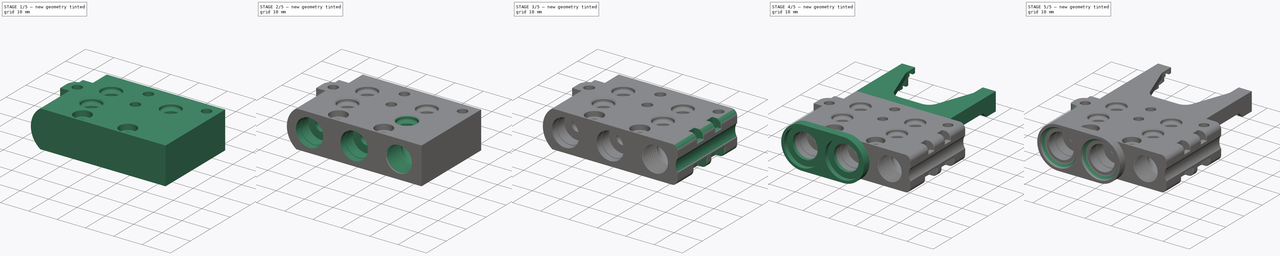
[diagram: build sequence overview — one tinted view per stage of 5, left to right]
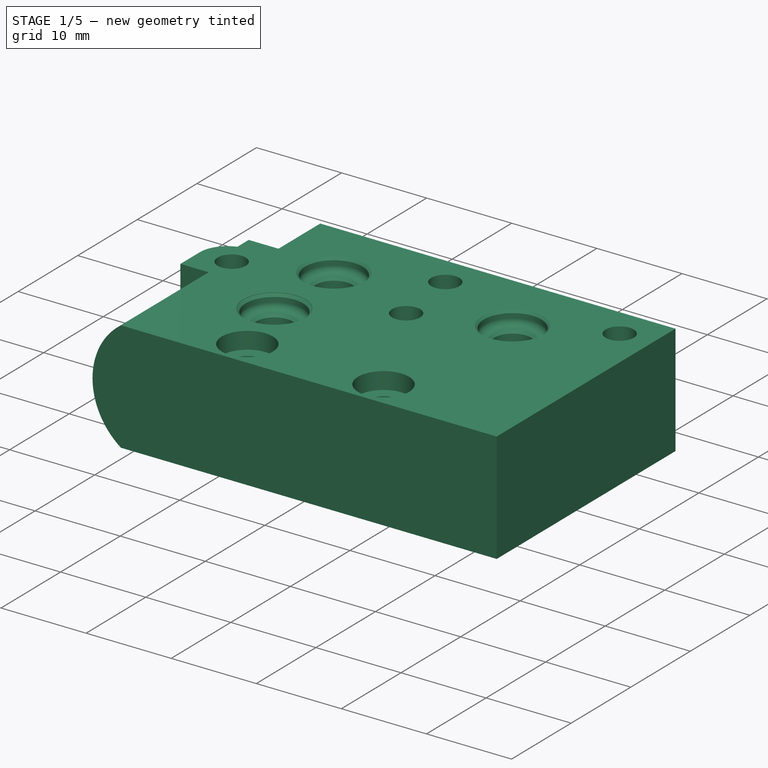
[diagram: stage 1 of 5 — iso view after this stage's code; geometry added in this stage tinted green]
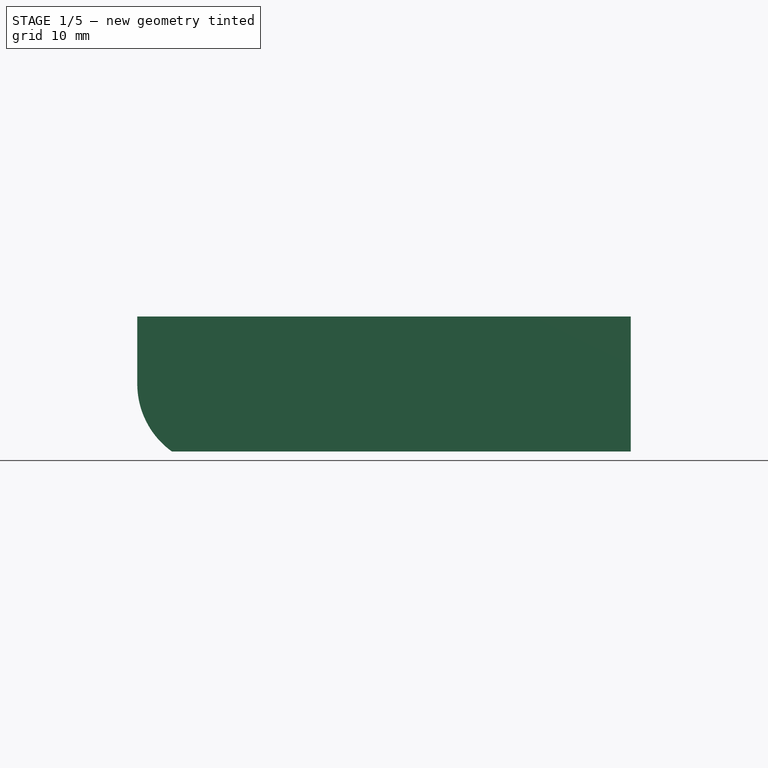
[diagram: stage 1 of 5 — front view after this stage's code; geometry added in this stage tinted green]
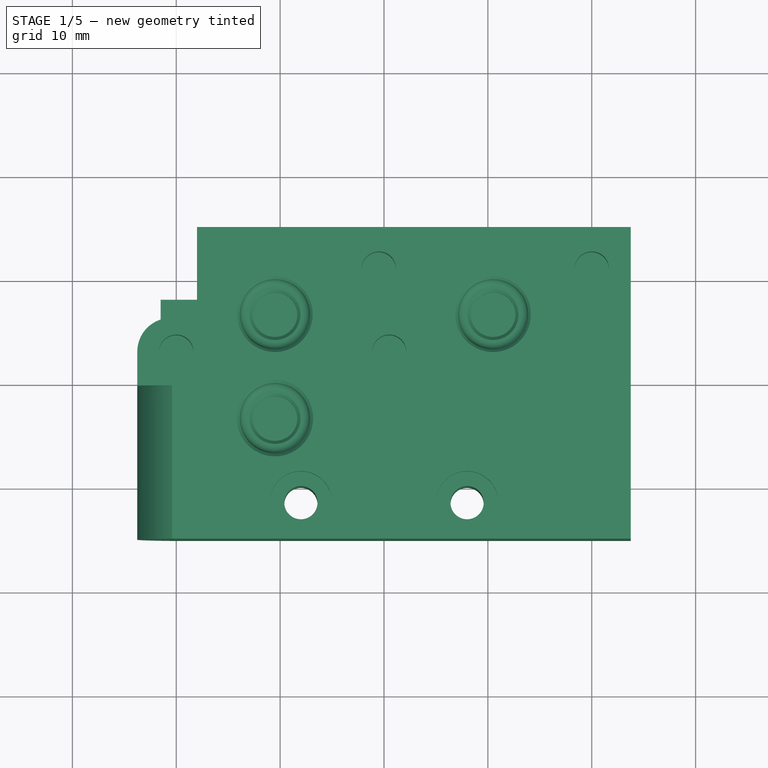
[diagram: stage 1 of 5 — top view after this stage's code; geometry added in this stage tinted green]
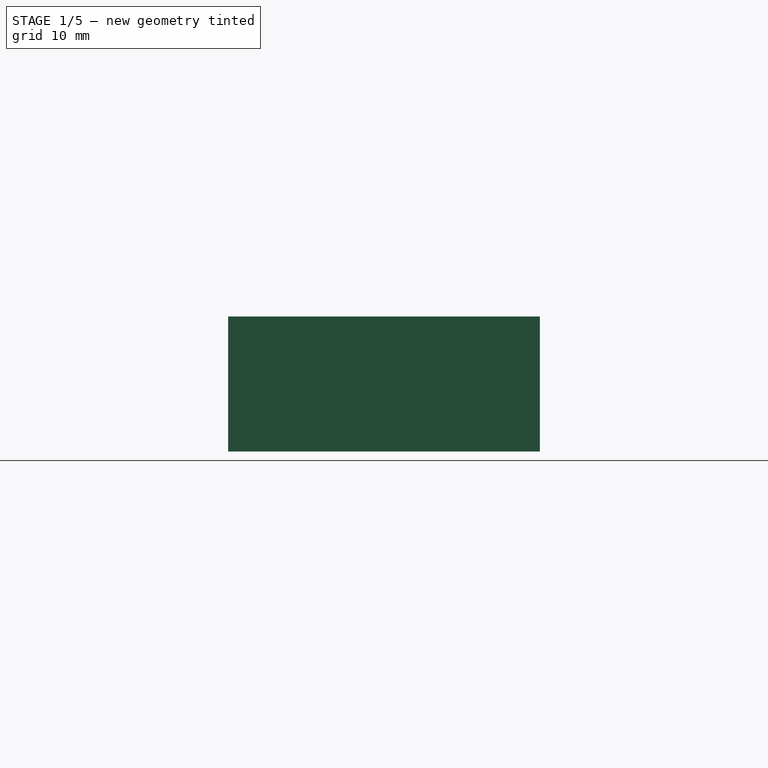
[diagram: stage 1 of 5 — right view after this stage's code; geometry added in this stage tinted green]
FCSTD DOCUMENT  (FreeCAD 1.0R39285 (Git))
Label: valve_block_v10
License: All rights reserved
LicenseURL: https://en.wikipedia.org/wiki/All_rights_reserved
objects: Sketcher::SketchObject×38, PartDesign::Pocket×20, PartDesign::Plane×6, PartDesign::ShapeBinder×6, PartDesign::Pad×5, PartDesign::Chamfer×5, PartDesign::Fillet×5, Part::Part2DObjectPython×4, PartDesign::SubtractivePipe×4, PartDesign::Groove×2, PartDesign::Mirrored×2, PartDesign::Line×1, PartDesign::SubtractiveHelix×1, PartDesign::Body×1
note: 224 computed .brp shape members not serialized (recipe doc carries the construction recipe); baked Part::Feature solids carry a one-line shape summary decoded from their .brp

FEATURE [Sketcher::SketchObject] Sketch
  ArcFitTolerance = 1e-06
  AttachmentSupport = -> [XY_Plane]
  FullyConstrained = false
  MakeInternals = false
  MapMode = 5
  sketch-geometry (13):
    g0: LineSegment [constr] StartX=-23.75 StartY=-15 StartZ=0 EndX=23.75 EndY=-15 EndZ=0
    g1: LineSegment [constr] StartX=23.75 StartY=-15 StartZ=0 EndX=23.75 EndY=15 EndZ=0
    g2: LineSegment [constr] StartX=23.75 StartY=15 StartZ=0 EndX=-23.75 EndY=15 EndZ=0
    g3: LineSegment [constr] StartX=-23.75 StartY=15 StartZ=0 EndX=-23.75 EndY=-15 EndZ=0
    g4: GeomPoint [constr] X=0 Y=0 Z=0
    g5: LineSegment StartX=-18 StartY=15 StartZ=0 EndX=-18 EndY=8 EndZ=0
    g6: LineSegment StartX=-18 StartY=8 StartZ=0 EndX=-21.5 EndY=8 EndZ=0
    g7: LineSegment StartX=-18 StartY=15 StartZ=0 EndX=23.75 EndY=15 EndZ=0
    g8: LineSegment StartX=23.75 StartY=15 StartZ=0 EndX=23.75 EndY=-0.25 EndZ=0
    g9: LineSegment StartX=23.75 StartY=-0.25 StartZ=0 EndX=-23.75 EndY=-0.25 EndZ=0
    g10: LineSegment StartX=-23.75 StartY=-0.25 StartZ=0 EndX=-23.75 EndY=3 EndZ=0
    g11: ArcOfCircle CenterX=-20.5 CenterY=3 CenterZ=0 NormalX=0 NormalY=0 NormalZ=1 AngleXU=0 Radius=3.25 StartAngle=1.88356 EndAngle=3.14159
    g12: LineSegment StartX=-21.5 StartY=8 StartZ=0 EndX=-21.5 EndY=6.09233 EndZ=0
  constraints (37):
    c: Coincident(g0,g1)
    c: Coincident(g1,g2)
    c: Coincident(g2,g3)
    c: Coincident(g3,g0)
    c: Horizontal(g0)
    c: Horizontal(g2)
    c: Vertical(g1)
    c: Vertical(g3)
    c: Symmetric(g2,g0,g4)
    c: PointOnObject(g4,g-1)
    c: DistanceY(g3,g3) = 30
    c: DistanceX(g2,g2) = 47.5
    c: PointOnObject(g5,g2)
    c: Vertical(g5)
    c: Distance(g1,g5) = 41.75
    c: DistanceY(g5,g5) = 7
    c: Distance(g6) = 3.5
    c: Coincident(g6,g5)
    c: Horizontal(g6)
    c: Coincident(g7,g5)
    c: Coincident(g7,g1)
    c: PointOnObject(g4,g-2)
    c: Coincident(g8,g1)
    c: PointOnObject(g8,g1)
    c: DistanceY(g8,g8) = 15.25
    c: PointOnObject(g9,g3)
    c: Parallel(g7,g9)
    c: Coincident(g9,g8)
    c: Distance(g10) = 3.25
    c: Coincident(g10,g9)
    c: PointOnObject(g10,g3)
    c: PointOnObject(g10,g11)
    c: DistanceX(g11,g-1) = 20.5
    c: Distance(g11,g7) = 12
    c: Coincident(g12,g6)
    c: Perpendicular(g6,g12)
    c: Coincident(g11,g12)
FEATURE [PartDesign::Pad] Pad
  Direction = (0,0,1)
  Length = 13
  Length2 = 10
  Profile = -> Sketch
  ReferenceAxis = -> Sketch [N_Axis]
  Refine = true
  Suppressed = false
  Type = 0
FEATURE [Sketcher::SketchObject] Sketch001
  ArcFitTolerance = 1e-06
  AttachmentSupport = -> [Pad]
  ExternalGeometry = -> [Pad]
  FullyConstrained = true
  MakeInternals = false
  MapMode = 5
  Placement = pos=(0,-0.25,0) rot=(1,0,0;1.5708rad)
  sketch-geometry (4):
    g0: LineSegment StartX=23.75 StartY=0 StartZ=0 EndX=23.75 EndY=13 EndZ=0
    g1: LineSegment StartX=23.75 StartY=13 StartZ=0 EndX=-20.4137 EndY=13 EndZ=0
    g2: LineSegment StartX=23.75 StartY=0 StartZ=0 EndX=-20.4137 EndY=-9e-16 EndZ=0
    g3: ArcOfCircle CenterX=-15.75 CenterY=6.5 CenterZ=0 NormalX=0 NormalY=0 NormalZ=1 AngleXU=0 Radius=8 StartAngle=2.19316 EndAngle=4.09002
  constraints (11):
    c: Coincident(g0,g-5)
    c: Coincident(g0,g-5)
    c: Coincident(g1,g0)
    c: PointOnObject(g1,g-4)
    c: Coincident(g2,g0)
    c: PointOnObject(g2,g-1)
    c: Diameter(g3) = 16
    c: Tangent(g3,g-3)
    c: DistanceY(g-1,g3) = 6.5
    c: Coincident(g3,g1)
    c: Coincident(g3,g2)
FEATURE [PartDesign::Pad] Pad001
  BaseFeature = -> Pad
  Direction = (0,-1,2e-16)
  Length = 14.75
  Length2 = 10
  Profile = -> Sketch001
  ReferenceAxis = -> Sketch001 [N_Axis]
  Refine = true
  Suppressed = false
  Type = 0
FEATURE [Sketcher::SketchObject] Sketch002
  ArcFitTolerance = 1e-06
  AttachmentSupport = -> [Pad001]
  ExternalGeometry = -> [Pad001]
  FullyConstrained = true
  MakeInternals = false
  MapMode = 5
  Placement = pos=(0,-0.25,0) rot=(1,0,0;1.5708rad)
  sketch-geometry (3):
    g0: LineSegment StartX=-23.75 StartY=6.5 StartZ=0 EndX=-23.75 EndY=0 EndZ=0
    g1: LineSegment StartX=-23.75 StartY=0 StartZ=0 EndX=-20.4137 EndY=0 EndZ=0
    g2: ArcOfCircle CenterX=-15.75 CenterY=6.49999 CenterZ=0 NormalX=0 NormalY=0 NormalZ=1 AngleXU=0 Radius=7.99999 StartAngle=3.14159 EndAngle=4.09002
  constraints (7):
    c: Coincident(g1,g0)
    c: Coincident(g1,g-5)
    c: Tangent(g2,g-4)
    c: Coincident(g2,g1)
    c: Coincident(g2,g0)
    c: Coincident(g0,g-3)
    c: Coincident(g0,g-5)
FEATURE [PartDesign::Pocket] Pocket
  BaseFeature = -> Pad001
  Direction = (0,1,-2e-16)
  Length = 5
  Length2 = 5
  Profile = -> Sketch002
  ReferenceAxis = -> Sketch002 [N_Axis]
  Refine = true
  Suppressed = false
  Type = 1
FEATURE [Sketcher::SketchObject] Sketch003
  ArcFitTolerance = 1e-06
  AttachmentSupport = -> [Pocket]
  ExternalGeometry = -> [Pocket]
  FullyConstrained = true
  MakeInternals = false
  MapMode = 5
  Placement = pos=(0,0,13) rot=(0,0,1;0rad)
  sketch-geometry (4):
    g0: Circle CenterX=-0.5 CenterY=11 CenterZ=0 NormalX=0 NormalY=0 NormalZ=1 AngleXU=0 Radius=1.65
    g1: Circle CenterX=0.5 CenterY=3 CenterZ=0 NormalX=0 NormalY=0 NormalZ=1 AngleXU=0 Radius=1.65
    g2: Circle CenterX=-20 CenterY=3 CenterZ=0 NormalX=0 NormalY=0 NormalZ=1 AngleXU=0 Radius=1.65
    g3: Circle CenterX=20 CenterY=11 CenterZ=0 NormalX=0 NormalY=0 NormalZ=1 AngleXU=0 Radius=1.65
  constraints (12):
    c: Diameter(g0) = 3.3
    c: Equal(g0,g2)
    c: Equal(g0,g1)
    c: Equal(g1,g3)
    c: DistanceX(g0,g-1) = 0.5
    c: DistanceX(g-1,g1) = 0.5
    c: DistanceX(g-1,g3) = 20
    c: DistanceX(g2,g-1) = 20
    c: Distance(g0,g-3) = 4
    c: Distance(g3,g-3) = 4
    c: Distance(g1,g-3) = 12
    c: Distance(g2,g-3) = 12
FEATURE [PartDesign::Pocket] Pocket001
  BaseFeature = -> Pocket
  Direction = (0,0,-1)
  Length = 5
  Length2 = 5
  Profile = -> Sketch003
  ReferenceAxis = -> Sketch003 [N_Axis]
  Refine = true
  Suppressed = false
  Type = 0
FEATURE [Sketcher::SketchObject] Sketch004
  ArcFitTolerance = 1e-06
  AttachmentSupport = -> [Pocket001]
  ExternalGeometry = -> [Pocket001]
  FullyConstrained = true
  MakeInternals = false
  MapMode = 5
  Placement = pos=(0,0,13) rot=(0,0,1;0rad)
  sketch-geometry (4):
    g0: Circle CenterX=-8 CenterY=-11.5 CenterZ=0 NormalX=0 NormalY=0 NormalZ=1 AngleXU=0 Radius=3
    g1: Circle CenterX=-8 CenterY=-11.5 CenterZ=0 NormalX=0 NormalY=0 NormalZ=1 AngleXU=0 Radius=1.6
    g2: Circle CenterX=8 CenterY=-11.5 CenterZ=0 NormalX=0 NormalY=0 NormalZ=1 AngleXU=0 Radius=1.6
    g3: Circle CenterX=8 CenterY=-11.5 CenterZ=0 NormalX=0 NormalY=0 NormalZ=1 AngleXU=0 Radius=3
  constraints (10):
    c: Coincident(g1,g0)
    c: Coincident(g3,g2)
    c: Distance(g0,g-3) = 3.5
    c: Distance(g2,g-3) = 3.5
    c: Diameter(g1) = 3.2
    c: Diameter(g0) = 6
    c: Diameter(g2) = 3.2
    c: Diameter(g3) = 6
    c: Distance(g2,g-2) = 8
    c: DistanceX(g0,g-1) = 8
FEATURE [PartDesign::Pocket] Pocket002
  BaseFeature = -> Pocket001
  Direction = (0,0,-1)
  Length = 2
  Length2 = 5
  Profile = -> Sketch004
  ReferenceAxis = -> Sketch004 [N_Axis]
  Refine = true
  Suppressed = false
  Type = 0
FEATURE [PartDesign::Pocket] Pocket003
  BaseFeature = -> Pocket002
  Direction = (0,0,-1)
  Length = 5
  Length2 = 5
  Profile = -> Sketch004 [Edge3,Edge2]
  ReferenceAxis = -> Sketch004 [N_Axis]
  Refine = true
  Suppressed = false
  Type = 1
FEATURE [PartDesign::Plane] DatumPlane
  AttachmentOffset = pos=(0,0,-7.5) rot=(0,0,1;0rad)
  AttachmentSupport = -> [Pocket003]
  Length = 76.4018
  MapMode = 5
  Placement = pos=(-10.5,0,0) rot=(0.57735,-0.57735,-0.57735;2.0944rad)
  ResizeMode = 0
  Width = 61.4018
FEATURE [Sketcher::SketchObject] Sketch005
  ArcFitTolerance = 1e-06
  AttachmentSupport = -> [DatumPlane]
  ExternalGeometry = -> [Pocket003]
  FullyConstrained = true
  MakeInternals = false
  MapMode = 5
  Placement = pos=(-10.5,0,0) rot=(0.57735,-0.57735,-0.57735;2.0944rad)
  sketch-geometry (24):
    g0: LineSegment StartX=-10.275 StartY=13 StartZ=0 EndX=-10.275 EndY=13.041 EndZ=0
    g1: LineSegment [constr] StartX=-10.275 StartY=13.041 StartZ=0 EndX=-2.925 EndY=13.041 EndZ=0
    g2: LineSegment [constr] StartX=-2.925 StartY=13.041 StartZ=0 EndX=-2.925 EndY=13 EndZ=0
    g3: LineSegment [constr] StartX=-2.925 StartY=13 StartZ=0 EndX=-10.275 EndY=13 EndZ=0
    g4: LineSegment StartX=-9.975 StartY=12.741 StartZ=0 EndX=-9.975 EndY=12.191 EndZ=0
    g5: LineSegment [constr] StartX=-9.975 StartY=12.191 StartZ=0 EndX=-3.225 EndY=12.191 EndZ=0
    g6: LineSegment [constr] StartX=-3.225 StartY=12.191 StartZ=0 EndX=-3.225 EndY=12.741 EndZ=0
    g7: LineSegment [constr] StartX=-3.225 StartY=12.741 StartZ=0 EndX=-9.975 EndY=12.741 EndZ=0
    g8: LineSegment StartX=-10.275 StartY=13.041 StartZ=0 EndX=-9.975 EndY=12.741 EndZ=0
    g9: LineSegment [constr] StartX=-3.225 StartY=12.741 StartZ=0 EndX=-2.925 EndY=13.041 EndZ=0
    g10: LineSegment StartX=-6.6 StartY=13 StartZ=0 EndX=-6.6 EndY=10.041 EndZ=0
    g11: LineSegment StartX=-8.75 StartY=11.141 StartZ=0 EndX=-8.75 EndY=10.041 EndZ=0
    g12: LineSegment [constr] StartX=-8.75 StartY=10.041 StartZ=0 EndX=-4.45 EndY=10.041 EndZ=0
    g13: LineSegment [constr] StartX=-4.45 StartY=10.041 StartZ=0 EndX=-4.45 EndY=11.141 EndZ=0
    g14: LineSegment [constr] StartX=-4.45 StartY=11.141 StartZ=0 EndX=-8.75 EndY=11.141 EndZ=0
    g15: LineSegment [constr] StartX=-9.225 StartY=11.441 StartZ=0 EndX=-3.975 EndY=11.441 EndZ=0
    g16: ArcOfCircle CenterX=-9.225 CenterY=12.191 CenterZ=0 NormalX=0 NormalY=0 NormalZ=1 AngleXU=0 Radius=0.75 StartAngle=3.14159 EndAngle=4.71239
    g17: LineSegment StartX=-9.05 StartY=11.441 StartZ=0 EndX=-8.75 EndY=11.141 EndZ=0
    g18: LineSegment [constr] StartX=-4.15 StartY=11.441 StartZ=0 EndX=-4.45 EndY=11.141 EndZ=0
    g19: ArcOfCircle [constr] CenterX=-3.975 CenterY=12.191 CenterZ=0 NormalX=0 NormalY=0 NormalZ=1 AngleXU=0 Radius=0.75 StartAngle=4.71239 EndAngle=6.28319
    g20: LineSegment StartX=-9.225 StartY=11.441 StartZ=0 EndX=-9.05 EndY=11.441 EndZ=0
    g21: LineSegment [constr] StartX=-4.15 StartY=11.441 StartZ=0 EndX=-3.975 EndY=11.441 EndZ=0
    g22: LineSegment StartX=-10.275 StartY=13 StartZ=0 EndX=-6.6 EndY=13 EndZ=0
    g23: LineSegment StartX=-6.6 StartY=10.041 StartZ=0 EndX=-8.75 EndY=10.041 EndZ=0
  constraints (66):
    c: Coincident(g0,g1)
    c: Coincident(g1,g2)
    c: Coincident(g2,g3)
    c: Coincident(g3,g0)
    c: Vertical(g0)
    c: Vertical(g2)
    c: Horizontal(g1)
    c: Horizontal(g3)
    c: Distance(g0,g2) = 7.35
    c: Distance(g1,g3) = 0.041
    c: PointOnObject(g0,g-3)
    c: Coincident(g4,g5)
    c: Coincident(g5,g6)
    c: Coincident(g6,g7)
    c: Coincident(g7,g4)
    c: Vertical(g4)
    c: Vertical(g6)
    c: Horizontal(g5)
    c: Horizontal(g7)
    c: Coincident(g8,g0)
    c: Coincident(g8,g4)
    c: Coincident(g9,g6)
    c: Coincident(g9,g1)
    c: Angle(g7,g8) = 2.35619
    c: Angle(g9,g7) = 2.35619
    c: Distance(g1,g7) = 0.3
    c: Distance(g7,g5) = 0.55
    c: Symmetric(g3,g3,g10)
    c: Vertical(g10)
    c: Coincident(g11,g12)
    c: Coincident(g12,g13)
    c: Coincident(g13,g14)
    c: Coincident(g14,g11)
    c: Vertical(g11)
    c: Vertical(g13)
    c: Horizontal(g12)
    c: Horizontal(g14)
    c: Symmetric(g12,g12,g10)
    c: DistanceX(g12,g12) = 4.3
    c: Distance(g14,g12) = 1.1
    c: Horizontal(g15)
    c: Distance(g5,g15) = 0.75
    c: Angle(g16) = 1.5708
    c: PointOnObject(g16,g5)
    c: Coincident(g16,g4)
    c: Coincident(g15,g16)
    c: PointOnObject(g17,g15)
    c: Coincident(g17,g11)
    c: PointOnObject(g18,g15)
    c: Coincident(g18,g13)
    c: Angle(g17,g15) = 0.785398
    c: DistanceX(g15,g17) = 0.175
    c: DistanceX(g18,g15) = 0.175
    c: Angle(g19) = 1.5708
    c: PointOnObject(g19,g5)
    c: Coincident(g19,g5)
    c: Coincident(g19,g15)
    c: Coincident(g20,g15)
    c: Coincident(g20,g17)
    c: Coincident(g21,g18)
    c: Coincident(g21,g15)
    c: Coincident(g22,g0)
    c: Coincident(g22,g10)
    c: Coincident(g23,g10)
    c: Coincident(g23,g11)
    c: DistanceX(g-3,g10) = 8.4
FEATURE [PartDesign::Plane] DatumPlane001
  AttachmentOffset = pos=(0,0,-13.4) rot=(0,0,1;0rad)
  AttachmentSupport = -> [Pocket003]
  Length = 60
  MapMode = 5
  Placement = pos=(0,1.6,3e-15) rot=(0,0.707107,0.707107;3.14159rad)
  ResizeMode = 0
  Width = 60
FEATURE [PartDesign::Plane] DatumPlane002
  AttachmentOffset = pos=(0,0,-10.5) rot=(0,0,1;0rad)
  AttachmentSupport = -> [DatumPlane]
  Length = 76.4018
  MapMode = 5
  Placement = pos=(0,0,0) rot=(0.57735,-0.57735,-0.57735;2.0944rad)
  ResizeMode = 0
  Width = 61.4018
FEATURE [PartDesign::Groove] Groove
  Angle = 360
  Angle2 = 60
  Axis = (0,0,-1)
  Base = (-10.5,6.6,13)
  BaseFeature = -> Pocket003
  Profile = -> Sketch005
  ReferenceAxis = -> Sketch005 [Edge9]
  Refine = true
  Reversed = true
  Suppressed = false
  Type = 0
FEATURE [PartDesign::Mirrored] Mirrored
  BaseFeature = -> Groove
  MirrorPlane = -> DatumPlane002
  Originals = -> [Groove]
  Refine = true
  Suppressed = false
  TransformMode = 0
FEATURE [Sketcher::SketchObject] Sketch006
  ArcFitTolerance = 1e-06
  AttachmentSupport = -> [DatumPlane]
  ExternalGeometry = -> [DatumPlane001,Mirrored]
  FullyConstrained = true
  MakeInternals = false
  MapMode = 5
  Placement = pos=(-10.5,0,0) rot=(0.57735,-0.57735,-0.57735;2.0944rad)
  sketch-geometry (24):
    g0: LineSegment StartX=-0.275 StartY=13 StartZ=0 EndX=-0.275 EndY=12.959 EndZ=0
    g1: LineSegment [constr] StartX=-0.275 StartY=12.959 StartZ=0 EndX=7.075 EndY=12.959 EndZ=0
    g2: LineSegment [constr] StartX=7.075 StartY=12.959 StartZ=0 EndX=7.075 EndY=13 EndZ=0
    g3: LineSegment [constr] StartX=7.075 StartY=13 StartZ=0 EndX=-0.275 EndY=13 EndZ=0
    g4: LineSegment StartX=0.0249997 StartY=12.659 StartZ=0 EndX=0.0249997 EndY=12.109 EndZ=0
    g5: LineSegment [constr] StartX=0.0249997 StartY=12.109 StartZ=0 EndX=6.775 EndY=12.109 EndZ=0
    g6: LineSegment [constr] StartX=6.775 StartY=12.109 StartZ=0 EndX=6.775 EndY=12.659 EndZ=0
    g7: LineSegment [constr] StartX=6.775 StartY=12.659 StartZ=0 EndX=0.0249997 EndY=12.659 EndZ=0
    g8: LineSegment StartX=-0.275 StartY=12.959 StartZ=0 EndX=0.0249997 EndY=12.659 EndZ=0
    g9: LineSegment [constr] StartX=6.775 StartY=12.659 StartZ=0 EndX=7.075 EndY=12.959 EndZ=0
    g10: LineSegment StartX=3.4 StartY=13 StartZ=0 EndX=3.4 EndY=9.959 EndZ=0
    g11: LineSegment StartX=1.25 StartY=11.059 StartZ=0 EndX=1.25 EndY=9.959 EndZ=0
    g12: LineSegment [constr] StartX=1.25 StartY=9.959 StartZ=0 EndX=5.55 EndY=9.959 EndZ=0
    g13: LineSegment [constr] StartX=5.55 StartY=9.959 StartZ=0 EndX=5.55 EndY=11.059 EndZ=0
    g14: LineSegment [constr] StartX=5.55 StartY=11.059 StartZ=0 EndX=1.25 EndY=11.059 EndZ=0
    g15: LineSegment [constr] StartX=0.774999 StartY=11.359 StartZ=0 EndX=6.025 EndY=11.359 EndZ=0
    g16: ArcOfCircle CenterX=0.775 CenterY=12.109 CenterZ=0 NormalX=0 NormalY=0 NormalZ=1 AngleXU=0 Radius=0.75 StartAngle=3.14159 EndAngle=4.71239
    g17: LineSegment StartX=0.949999 StartY=11.359 StartZ=0 EndX=1.25 EndY=11.059 EndZ=0
    g18: LineSegment [constr] StartX=5.85 StartY=11.359 StartZ=0 EndX=5.55 EndY=11.059 EndZ=0
    g19: ArcOfCircle [constr] CenterX=6.025 CenterY=12.109 CenterZ=0 NormalX=0 NormalY=0 NormalZ=1 AngleXU=0 Radius=0.75 StartAngle=4.71239 EndAngle=6.28319
    g20: LineSegment StartX=0.774999 StartY=11.359 StartZ=0 EndX=0.949999 EndY=11.359 EndZ=0
    g21: LineSegment [constr] StartX=5.85 StartY=11.359 StartZ=0 EndX=6.025 EndY=11.359 EndZ=0
    g22: LineSegment StartX=-0.275 StartY=13 StartZ=0 EndX=3.4 EndY=13 EndZ=0
    g23: LineSegment StartX=3.4 StartY=9.959 StartZ=0 EndX=1.25 EndY=9.959 EndZ=0
  constraints (66):
    c: Coincident(g0,g1)
    c: Coincident(g1,g2)
    c: Coincident(g2,g3)
    c: Coincident(g3,g0)
    c: Vertical(g0)
    c: Vertical(g2)
    c: Horizontal(g1)
    c: Horizontal(g3)
    c: Distance(g0,g2) = 7.35
    c: Distance(g1,g3) = 0.041
    c: Coincident(g4,g5)
    c: Coincident(g5,g6)
    c: Coincident(g6,g7)
    c: Coincident(g7,g4)
    c: Vertical(g4)
    c: Vertical(g6)
    c: Horizontal(g5)
    c: Horizontal(g7)
    c: Coincident(g8,g0)
    c: Coincident(g8,g4)
    c: Coincident(g9,g6)
    c: Coincident(g9,g1)
    c: Angle(g7,g8) = 2.35619
    c: Angle(g9,g7) = 2.35619
    c: Distance(g1,g7) = 0.3
    c: Distance(g7,g5) = 0.55
    c: Symmetric(g3,g3,g10)
    c: Vertical(g10)
    c: Coincident(g11,g12)
    c: Coincident(g12,g13)
    c: Coincident(g13,g14)
    c: Coincident(g14,g11)
    c: Vertical(g11)
    c: Vertical(g13)
    c: Horizontal(g12)
    c: Horizontal(g14)
    c: Symmetric(g12,g12,g10)
    c: DistanceX(g12,g12) = 4.3
    c: Distance(g14,g12) = 1.1
    c: Horizontal(g15)
    c: Distance(g5,g15) = 0.75
    c: Angle(g16) = 1.5708
    c: PointOnObject(g16,g5)
    c: Coincident(g16,g4)
    c: Coincident(g15,g16)
    c: PointOnObject(g17,g15)
    c: Coincident(g17,g11)
    c: PointOnObject(g18,g15)
    c: Coincident(g18,g13)
    c: Angle(g17,g15) = 0.785398
    c: DistanceX(g15,g17) = 0.175
    c: DistanceX(g18,g15) = 0.175
    c: Angle(g19) = 1.5708
    c: PointOnObject(g19,g5)
    c: Coincident(g19,g5)
    c: Coincident(g19,g15)
    c: Coincident(g20,g15)
    c: Coincident(g20,g17)
    c: Coincident(g21,g18)
    c: Coincident(g21,g15)
    c: Coincident(g22,g0)
    c: Coincident(g22,g10)
    c: Coincident(g23,g10)
    c: Coincident(g23,g11)
    c: PointOnObject(g10,g-4)
    c: Distance(g10,g-3) = 5
FEATURE [PartDesign::Groove] Groove001
  Angle = 360
  Angle2 = 60
  Axis = (0,0,-1)
  Base = (-10.5,-3.4,13)
  BaseFeature = -> Mirrored
  Profile = -> Sketch006
  ReferenceAxis = -> Sketch006 [Edge9]
  Refine = true
  Suppressed = false
  Type = 0
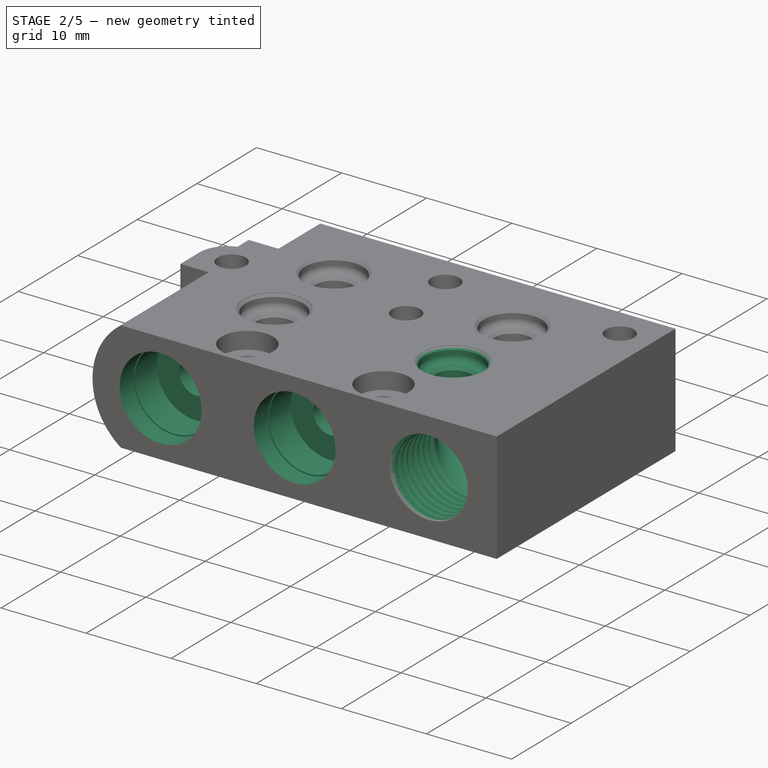
[diagram: stage 2 of 5 — iso view after this stage's code; geometry added in this stage tinted green]
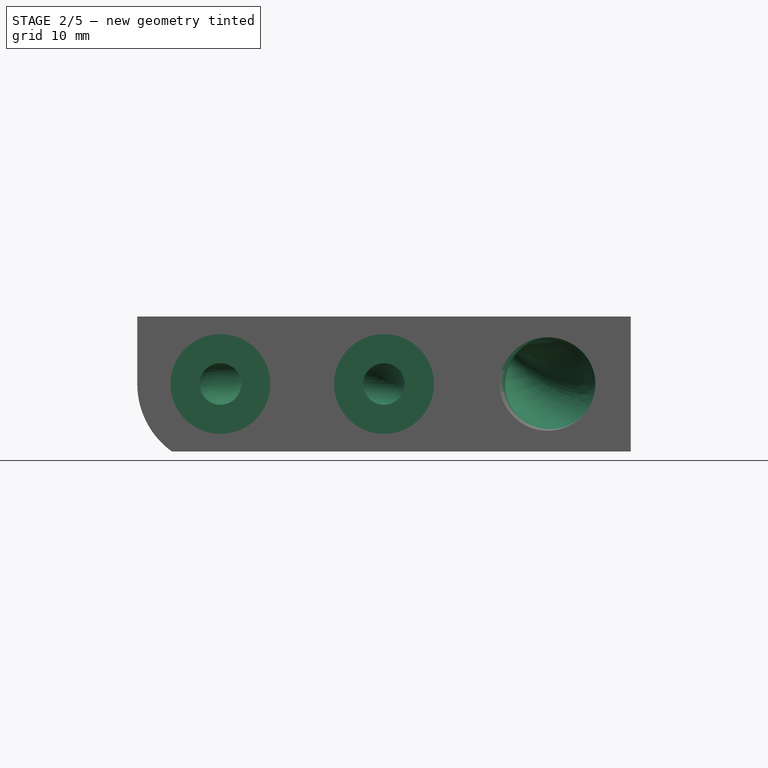
[diagram: stage 2 of 5 — front view after this stage's code; geometry added in this stage tinted green]
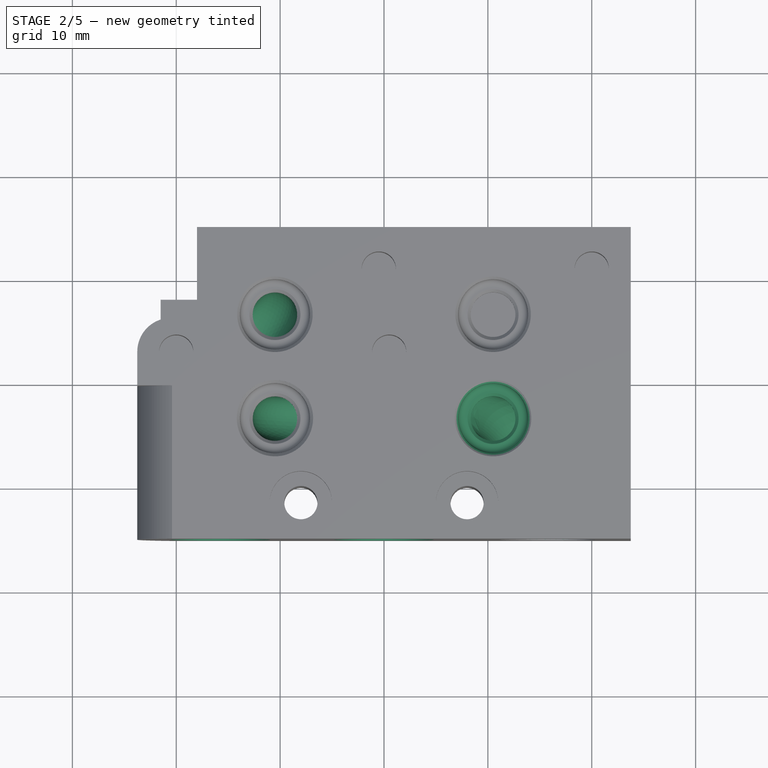
[diagram: stage 2 of 5 — top view after this stage's code; geometry added in this stage tinted green]
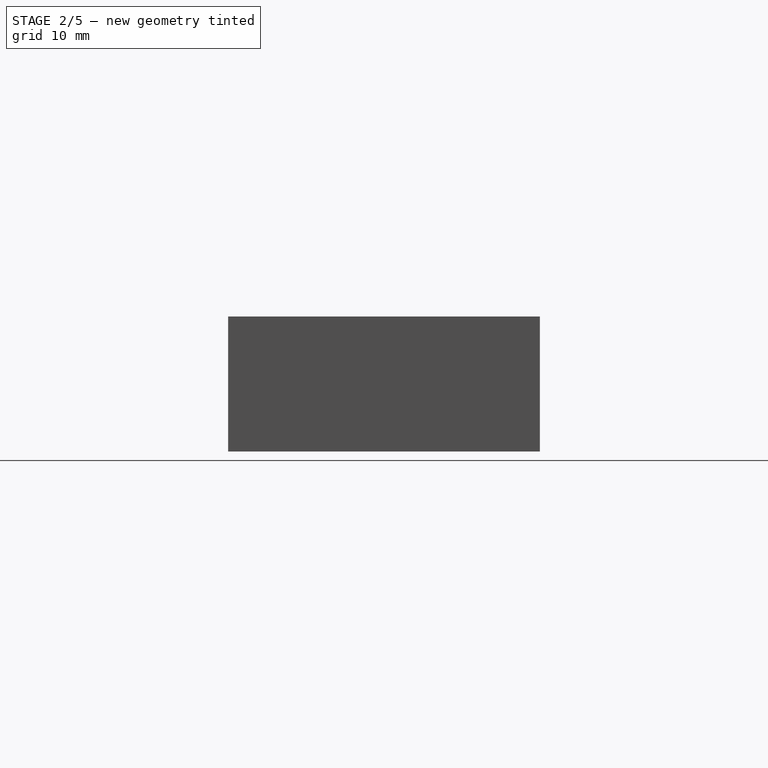
[diagram: stage 2 of 5 — right view after this stage's code; geometry added in this stage tinted green]
FEATURE [PartDesign::Mirrored] Mirrored001
  BaseFeature = -> Groove001
  MirrorPlane = -> DatumPlane002
  Originals = -> [Groove001]
  Refine = true
  Suppressed = false
  TransformMode = 0
FEATURE [Sketcher::SketchObject] Sketch007
  ArcFitTolerance = 1e-06
  AttachmentSupport = -> [Mirrored001]
  ExternalGeometry = -> [Mirrored001]
  FullyConstrained = true
  MakeInternals = false
  MapMode = 5
  Placement = pos=(0,-15,3.3e-15) rot=(1,0,0;1.5708rad)
  sketch-geometry (6):
    g0: Circle CenterX=-15.75 CenterY=6.5 CenterZ=0 NormalX=0 NormalY=0 NormalZ=1 AngleXU=0 Radius=4.65
    g1: Circle CenterX=0 CenterY=6.5 CenterZ=0 NormalX=0 NormalY=0 NormalZ=1 AngleXU=0 Radius=4.65
    g2: Circle CenterX=-15.75 CenterY=6.5 CenterZ=0 NormalX=0 NormalY=0 NormalZ=1 AngleXU=0 Radius=2
    g3: Circle CenterX=0 CenterY=6.5 CenterZ=0 NormalX=0 NormalY=0 NormalZ=1 AngleXU=0 Radius=2
    g4: Circle CenterX=-15.75 CenterY=6.5 CenterZ=0 NormalX=0 NormalY=0 NormalZ=1 AngleXU=0 Radius=4.8
    g5: Circle CenterX=0 CenterY=6.5 CenterZ=0 NormalX=0 NormalY=0 NormalZ=1 AngleXU=0 Radius=4.8
  constraints (14):
    c: Diameter(g1) = 9.3
    c: Equal(g1,g0)
    c: PointOnObject(g1,g-2)
    c: DistanceY(g-1,g1) = 6.5
    c: DistanceY(g-1,g0) = 6.5
    c: DistanceX(g0,g-1) = 15.75
    c: Diameter(g2) = 4
    c: Coincident(g2,g0)
    c: Diameter(g3) = 4
    c: Coincident(g3,g1)
    c: Coincident(g4,g0)
    c: Diameter(g4) = 9.6
    c: Diameter(g5) = 9.6
    c: Coincident(g5,g1)
FEATURE [PartDesign::Pocket] Pocket004
  BaseFeature = -> Mirrored001
  Direction = (0,1,-2e-16)
  Length = 2.3
  Length2 = 5
  Profile = -> Sketch007
  ReferenceAxis = -> Sketch007 [N_Axis]
  Refine = true
  Suppressed = false
  Type = 0
FEATURE [PartDesign::Pocket] Pocket005
  BaseFeature = -> Pocket004
  Direction = (0,1,-2e-16)
  Length = 7
  Length2 = 5
  Profile = -> Sketch007 [Edge3,Edge4]
  ReferenceAxis = -> Sketch007 [N_Axis]
  Refine = true
  Suppressed = false
  Type = 0
FEATURE [PartDesign::Pocket] Pocket006
  BaseFeature = -> Pocket005
  Direction = (0,1,-2e-16)
  Length = 6
  Length2 = 5
  Profile = -> Pocket005 [Face51,Face50]
  Refine = true
  Suppressed = false
  Type = 0
FEATURE [Sketcher::SketchObject] Sketch008
  ArcFitTolerance = 1e-06
  AttachmentSupport = -> [Pocket006]
  ExternalGeometry = -> [Pocket006]
  FullyConstrained = true
  MakeInternals = false
  MapMode = 5
  Placement = pos=(0,-15,3.3e-15) rot=(1,0,0;1.5708rad)
  sketch-geometry (1):
    g0: Circle CenterX=16 CenterY=6.5 CenterZ=0 NormalX=0 NormalY=0 NormalZ=1 AngleXU=0 Radius=4.35
  constraints (3):
    c: DistanceX(g-3,g0) = 16
    c: DistanceY(g-1,g0) = 6.5
    c: Diameter(g0) = 8.7
FEATURE [PartDesign::Pocket] Pocket007
  BaseFeature = -> Pocket006
  Direction = (0,1,-2e-16)
  Length = 7
  Length2 = 5
  Profile = -> Sketch008
  ReferenceAxis = -> Sketch008 [N_Axis]
  Refine = true
  Suppressed = false
  Type = 0
FEATURE [Sketcher::SketchObject] Sketch009
  ArcFitTolerance = 1e-06
  AttachmentSupport = -> [Pocket007]
  ExternalGeometry = -> [Pocket007]
  FullyConstrained = true
  MakeInternals = false
  MapMode = 5
  Placement = pos=(0,-8,1.9e-15) rot=(1,0,0;1.5708rad)
  sketch-geometry (1):
    g0: GeomPoint X=16 Y=6.5 Z=0
  constraints (1):
    c: Coincident(g0,g-3)
FEATURE [Sketcher::SketchObject] Sketch010
  ArcFitTolerance = 1e-06
  AttachmentSupport = -> [Pocket007]
  ExternalGeometry = -> [Pocket007]
  FullyConstrained = true
  MakeInternals = false
  MapMode = 5
  Placement = pos=(0,0,9.959) rot=(0,0,1;0rad)
  sketch-geometry (1):
    g0: GeomPoint X=10.5 Y=-3.4 Z=0
  constraints (1):
    c: Coincident(g0,g-3)
FEATURE [PartDesign::Plane] DatumPlane003
  AttachmentSupport = -> [Sketch010,Pocket007]
  Length = 60
  MapMode = 6
  Placement = pos=(10.5,-3.4,9.959) rot=(0.57735,-0.57735,0.57735;2.0944rad)
  ResizeMode = 0
  Width = 60
FEATURE [Sketcher::SketchObject] Sketch013
  ArcFitTolerance = 1e-06
  AttachmentSupport = -> [Pocket007]
  ExternalGeometry = -> [Pocket007]
  FullyConstrained = true
  MakeInternals = false
  MapMode = 5
  Placement = pos=(0,-8,1.9e-15) rot=(1,0,0;1.5708rad)
  sketch-geometry (1):
    g0: Circle CenterX=16 CenterY=6.5 CenterZ=0 NormalX=0 NormalY=0 NormalZ=1 AngleXU=0 Radius=4.35
  constraints (2):
    c: Coincident(g0,g-3)
    c: Equal(g0,g-3)
FEATURE [Sketcher::SketchObject] Sketch014
  ArcFitTolerance = 1e-06
  AttachmentSupport = -> [Pocket007]
  ExternalGeometry = -> [Pocket007]
  FullyConstrained = true
  MakeInternals = false
  MapMode = 5
  Placement = pos=(0,0,9.959) rot=(0,0,1;0rad)
  sketch-geometry (1):
    g0: Circle CenterX=10.5 CenterY=-3.4 CenterZ=0 NormalX=0 NormalY=0 NormalZ=1 AngleXU=0 Radius=2.15
  constraints (2):
    c: Coincident(g0,g-3)
    c: Equal(g0,g-3)
FEATURE [PartDesign::Plane] DatumPlane004
  AttachmentSupport = -> [Sketch009]
  Length = 61.4018
  MapMode = 1
  Placement = pos=(16,-8,6.5) rot=(0,0,1;0rad)
  ResizeMode = 0
  Width = 76.4018
FEATURE [Sketcher::SketchObject] Sketch015
  ArcFitTolerance = 1e-06
  AttachmentSupport = -> [DatumPlane004]
  FullyConstrained = true
  MakeInternals = false
  MapMode = 5
  Placement = pos=(16,-8,6.5) rot=(0,0,1;0rad)
  sketch-geometry (1):
    g0: GeomPoint X=-2 Y=3 Z=0
  constraints (2):
    c: DistanceY(g-1,g0) = 3
    c: DistanceX(g0,g-1) = 2
FEATURE [Part::Part2DObjectPython] Wire  # Draft 2D object (typed FeaturePython)
  Area = 0
  ChamferSize = 0
  Closed = false
  End = (10.5,-3.4,9.959)
  FilletRadius = 7
  Length = 8.3396
  MakeFace = true
  Placement = pos=(16,-8,6.5) rot=(0,0,1;0rad)
  Points = (3) [(0,0,0),(-2,3,0),(-5.5,4.6,3.459)]
  Start = (16,-8,6.5)
  Subdivisions = 0
FEATURE [PartDesign::ShapeBinder] CopyWire
  Placement = pos=(16,-8,6.5) rot=(0,0,1;0rad)
  TraceSupport = false
FEATURE [PartDesign::SubtractivePipe] SubtractivePipe
  AuxilleryCurvelinear = true
  AuxillerySpineTangent = false
  BaseFeature = -> Pocket007
  Binormal = (0,0,0)
  Mode = 0
  Profile = -> Sketch014
  Refine = true
  Sections = -> [Sketch013]
  Spine = -> CopyWire [Edge3,Edge2,Edge1]
  SpineTangent = false
  Suppressed = false
  Transformation = 1
  Transition = 0
FEATURE [Sketcher::SketchObject] Sketch016
  ArcFitTolerance = 1e-06
  AttachmentSupport = -> [DatumPlane004]
  ExternalGeometry = -> [SubtractivePipe]
  FullyConstrained = true
  MakeInternals = false
  MapMode = 5
  Placement = pos=(16,-8,6.5) rot=(0,0,1;0rad)
  sketch-geometry (6):
    g0: LineSegment StartX=4.35 StartY=-7 StartZ=0 EndX=4.35 EndY=-7.9072 EndZ=0
    g1: ArcOfCircle CenterX=4.5992 CenterY=-7 CenterZ=0 NormalX=0 NormalY=0 NormalZ=1 AngleXU=0 Radius=0.2492 StartAngle=3.14159 EndAngle=4.23017
    g2: LineSegment StartX=4.48363 StartY=-7.22078 StartZ=0 EndX=4.83188 EndY=-7.40307 EndZ=0
    g3: ArcOfCircle CenterX=4.80491 CenterY=-7.4546 CenterZ=0 NormalX=0 NormalY=0 NormalZ=1 AngleXU=0 Radius=0.05816 StartAngle=5.1901 EndAngle=7.37176
    g4: LineSegment StartX=4.83165 StartY=-7.50624 StartZ=0 EndX=4.48463 EndY=-7.6859 EndZ=0
    g5: ArcOfCircle CenterX=4.5992 CenterY=-7.9072 CenterZ=0 NormalX=0 NormalY=0 NormalZ=1 AngleXU=0 Radius=0.2492 StartAngle=2.04851 EndAngle=3.14159
  constraints (14):
    c: Coincident(g0,g-3)
    c: Vertical(g0)
    c: Tangent(g1,g0) = -1.5708
    c: Tangent(g2,g1) = -1.5708
    c: Tangent(g3,g2) = 1.5708
    c: Tangent(g4,g3) = 1.5708
    c: Tangent(g5,g4) = -1.5708
    c: DistanceY(g5,g1) = 0.9072
    c: DistanceY(g5,g3) = 0.452605
    c: Distance(g3,g0) = 0.45491
    c: Angle(g2,g4) = 0.959931
    c: Radius(g1) = 0.2492
    c: Radius(g5) = 0.2492
    c: Tangent(g5,g0) = -1.5708
FEATURE [PartDesign::Line] DatumLine
  AttacherType = Attacher::AttachEngineLine
  AttachmentSupport = -> [SubtractivePipe]
  Length = 20
  MapMode = 42
  Placement = pos=(16,0,6.5) rot=(0,0.707107,0.707107;3.14159rad)
  ResizeMode = 0
FEATURE [PartDesign::SubtractiveHelix] SubtractiveHelix
  Angle = 0
  Axis = (0,1,-2e-16)
  Base = (16,0,6.5)
  BaseFeature = -> SubtractivePipe
  Growth = 0
  HasBeenEdited = true
  Height = 7
  LeftHanded = false
  Mode = 0
  Outside = false
  Pitch = 0.91
  Profile = -> Sketch016
  ReferenceAxis = -> DatumLine
  Refine = true
  Suppressed = false
  Tolerance = 0.1
  Turns = 7.69231
FEATURE [Sketcher::SketchObject] Sketch018
  ArcFitTolerance = 1e-06
  AttachmentSupport = -> [SubtractiveHelix]
  ExternalGeometry = -> [SubtractiveHelix]
  FullyConstrained = true
  MakeInternals = false
  MapMode = 5
  Placement = pos=(0,-8,0) rot=(1,0,0;1.5708rad)
  sketch-geometry (1):
    g0: GeomPoint X=-15.75 Y=6.5 Z=0
  constraints (1):
    c: Coincident(g0,g-3)
FEATURE [Sketcher::SketchObject] Sketch019
  ArcFitTolerance = 1e-06
  AttachmentSupport = -> [DatumPlane004]
  ExternalGeometry = -> [SubtractiveHelix]
  FullyConstrained = true
  MakeInternals = false
  MapMode = 5
  Placement = pos=(16,-8,6.5) rot=(0,0,1;0rad)
  sketch-geometry (2):
    g0: GeomPoint [constr] X=-31.75 Y=-1 Z=0
    g1: GeomPoint X=-31.75 Y=9 Z=0
  constraints (3):
    c: Symmetric(g-3,g-3,g0)
    c: DistanceX(g1,g0) = 0
    c: DistanceY(g0,g1) = 10
FEATURE [Sketcher::SketchObject] Sketch020
  ArcFitTolerance = 1e-06
  AttachmentSupport = -> [DatumPlane]
  ExternalGeometry = -> [Sketch018]
  FullyConstrained = true
  MakeInternals = false
  MapMode = 5
  Placement = pos=(-10.5,0,0) rot=(0.57735,-0.57735,-0.57735;2.0944rad)
  sketch-geometry (1):
    g0: GeomPoint X=-6.6 Y=6.5 Z=0
  constraints (2):
    c: DistanceX(g0,g-3) = 0
    c: DistanceY(g-4,g0) = 0
FEATURE [Sketcher::SketchObject] Sketch022
  ArcFitTolerance = 1e-06
  AttachmentSupport = -> [SubtractiveHelix]
  ExternalGeometry = -> [SubtractiveHelix]
  FullyConstrained = true
  MakeInternals = false
  MapMode = 5
  Placement = pos=(0,-8,0) rot=(1,0,0;1.5708rad)
  sketch-geometry (1):
    g0: Circle CenterX=-15.75 CenterY=6.5 CenterZ=0 NormalX=0 NormalY=0 NormalZ=1 AngleXU=0 Radius=2
  constraints (2):
    c: Coincident(g0,g-3)
    c: Equal(g0,g-3)
FEATURE [PartDesign::ShapeBinder] CopyWire001
  Placement = pos=(-15.75,-8,6.5) rot=(0,0,1;0rad)
  TraceSupport = false
FEATURE [PartDesign::Plane] DatumPlane005
  AttachmentSupport = -> [SubtractiveHelix]
  Length = 61.4018
  MapMode = 11
  Placement = pos=(-10.5,6.6,11.141) rot=(0,0,1;3.14159rad)
  ResizeMode = 0
  Width = 76.4018
FEATURE [Sketcher::SketchObject] Sketch023
  ArcFitTolerance = 1e-06
  AttachmentSupport = -> [DatumPlane005]
  FullyConstrained = true
  MakeInternals = false
  MapMode = 5
  Placement = pos=(-10.5,6.6,11.141) rot=(0,0,1;3.14159rad)
  sketch-geometry (1):
    g0: GeomPoint X=0 Y=0 Z=0
  constraints (1):
    c: Coincident(g0,g-1)
FEATURE [Sketcher::SketchObject] Sketch024
  ArcFitTolerance = 1e-06
  AttachmentSupport = -> [DatumPlane005]
  ExternalGeometry = -> [SubtractiveHelix]
  FullyConstrained = true
  MakeInternals = false
  MapMode = 5
  Placement = pos=(-10.5,6.6,11.141) rot=(0,0,1;3.14159rad)
  sketch-geometry (1):
    g0: Circle CenterX=0 CenterY=0 CenterZ=0 NormalX=0 NormalY=0 NormalZ=1 AngleXU=0 Radius=2.15001
  constraints (2):
    c: Coincident(g0,g-1)
    c: Tangent(g0,g-3)
FEATURE [Part::Part2DObjectPython] Wire001  # Draft 2D object (typed FeaturePython)
  Area = 0
  ChamferSize = 0
  Closed = false
  End = (-10.5,6.6,11.141)
  FilletRadius = 3.5
  Length = 19.6828
  MakeFace = true
  Placement = pos=(-15.75,-8,6.5) rot=(0,0,1;0rad)
  Points = (4) [(0,0,0),(0,9,0),(5.25,14.6,0),(5.25,14.6,4.641)]
  Start = (-15.75,-8,6.5)
  Subdivisions = 0
FEATURE [PartDesign::ShapeBinder] CopyWire002
  Placement = pos=(-15.75,-8,6.5) rot=(0,0,1;0rad)
  TraceSupport = false
FEATURE [PartDesign::SubtractivePipe] SubtractivePipe001
  AuxilleryCurvelinear = true
  AuxillerySpineTangent = false
  BaseFeature = -> SubtractiveHelix
  Binormal = (0,0,0)
  Mode = 0
  Profile = -> Sketch022
  Refine = true
  Sections = -> [Sketch024]
  Spine = -> CopyWire002 [Edge1,Edge2,Edge3,Edge4,Edge5]
  SpineTangent = false
  Suppressed = false
  Transformation = 1
  Transition = 0
FEATURE [Sketcher::SketchObject] Sketch025
  ArcFitTolerance = 1e-06
  AttachmentSupport = -> [DatumPlane005]
  ExternalGeometry = -> [SubtractivePipe001]
  FullyConstrained = true
  MakeInternals = false
  MapMode = 5
  Placement = pos=(-10.5,6.6,11.141) rot=(0,0,1;3.14159rad)
  sketch-geometry (2):
    g0: Circle CenterX=0 CenterY=10 CenterZ=0 NormalX=0 NormalY=0 NormalZ=1 AngleXU=0 Radius=2.15
    g1: GeomPoint X=0 Y=10 Z=0
  constraints (3):
    c: Coincident(g0,g-3)
    c: Equal(g0,g-3)
    c: Coincident(g1,g0)
FEATURE [Sketcher::SketchObject] Sketch026
  ArcFitTolerance = 1e-06
  AttachmentSupport = -> [DatumPlane005]
  ExternalGeometry = -> [SubtractivePipe001]
  FullyConstrained = true
  MakeInternals = false
  MapMode = 5
  Placement = pos=(-10.5,6.6,11.141) rot=(0,0,1;3.14159rad)
  sketch-geometry (2):
    g0: Circle CenterX=-21 CenterY=0 CenterZ=0 NormalX=0 NormalY=0 NormalZ=1 AngleXU=0 Radius=2.15
    g1: GeomPoint X=-21 Y=0 Z=0
  constraints (3):
    c: Coincident(g0,g-3)
    c: Equal(g0,g-3)
    c: Coincident(g1,g0)
FEATURE [Sketcher::SketchObject] Sketch027
  ArcFitTolerance = 1e-06
  AttachmentSupport = -> [SubtractivePipe001]
  ExternalGeometry = -> [SubtractivePipe001]
  FullyConstrained = true
  MakeInternals = false
  MapMode = 5
  Placement = pos=(0,-8,0) rot=(1,0,0;1.5708rad)
  sketch-geometry (2):
    g0: Circle CenterX=0 CenterY=6.5 CenterZ=0 NormalX=0 NormalY=0 NormalZ=1 AngleXU=0 Radius=2
    g1: GeomPoint X=0 Y=6.5 Z=0
  constraints (3):
    c: Coincident(g0,g-3)
    c: Equal(g0,g-3)
    c: Coincident(g1,g0)
FEATURE [Sketcher::SketchObject] Sketch028
  ArcFitTolerance = 1e-06
  AttachmentSupport = -> [DatumPlane004]
  ExternalGeometry = -> [Sketch027,Sketch025,SubtractivePipe001]
  FullyConstrained = true
  MakeInternals = false
  MapMode = 5
  Placement = pos=(16,-8,6.5) rot=(0,0,1;0rad)
  sketch-geometry (5):
    g0: GeomPoint X=-16 Y=4 Z=0
    g1: GeomPoint X=-26.5 Y=4.6 Z=0
    g2: GeomPoint X=-5.5 Y=14.6 Z=0
    g3: GeomPoint X=-11 Y=9 Z=0
    g4: GeomPoint [constr] X=-16 Y=0 Z=0
  constraints (7):
    c: Symmetric(g-3,g-3,g4)
    c: DistanceY(g4,g0) = 4
    c: DistanceX(g4,g0) = 0
    c: Coincident(g-4,g1)
    c: Coincident(g2,g-5)
    c: DistanceY(g0,g3) = 5
    c: DistanceX(g0,g3) = 5
FEATURE [Part::Part2DObjectPython] Wire002  # Draft 2D object (typed FeaturePython)
  Area = 0
  ChamferSize = 0
  Closed = false
  End = (-10.5,-3.4,11.141)
  FilletRadius = 3.5
  Length = 16.3425
  MakeFace = true
  Placement = pos=(0,-8,6.5) rot=(0,0,1;0rad)
  Points = (4) [(0,0,0),(0,4,0),(-10.5,4.6,0),(-10.5,4.6,4.641)]
  Start = (0,-8,6.5)
  Subdivisions = 0
FEATURE [PartDesign::ShapeBinder] CopyWire003
  Placement = pos=(0,-8,6.5) rot=(0,0,1;0rad)
  TraceSupport = false
FEATURE [PartDesign::SubtractivePipe] SubtractivePipe002
  AuxilleryCurvelinear = true
  AuxillerySpineTangent = false
  BaseFeature = -> SubtractivePipe001
  Binormal = (0,0,0)
  Mode = 0
  Profile = -> Sketch027
  Refine = true
  Sections = -> [Sketch025]
  Spine = -> CopyWire003 [Edge2,Edge1,Edge3,Edge4,Edge5]
  SpineTangent = false
  Suppressed = false
  Transformation = 1
  Transition = 0
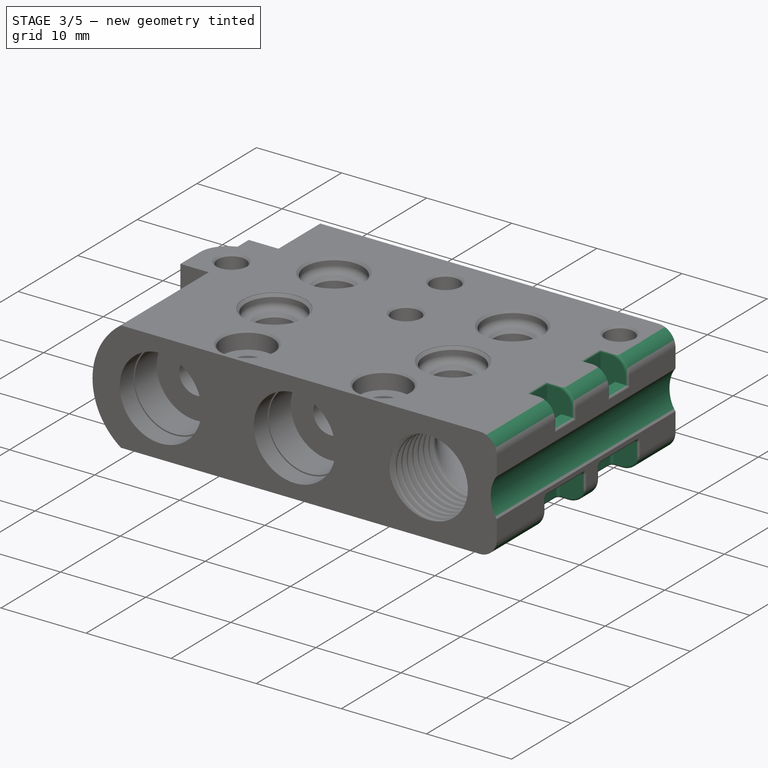
[diagram: stage 3 of 5 — iso view after this stage's code; geometry added in this stage tinted green]
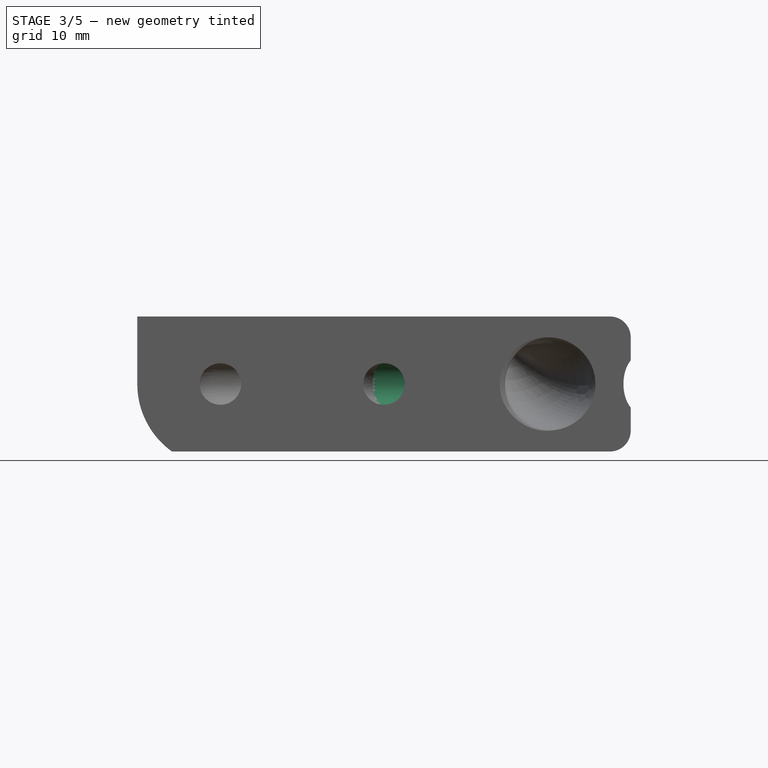
[diagram: stage 3 of 5 — front view after this stage's code; geometry added in this stage tinted green]
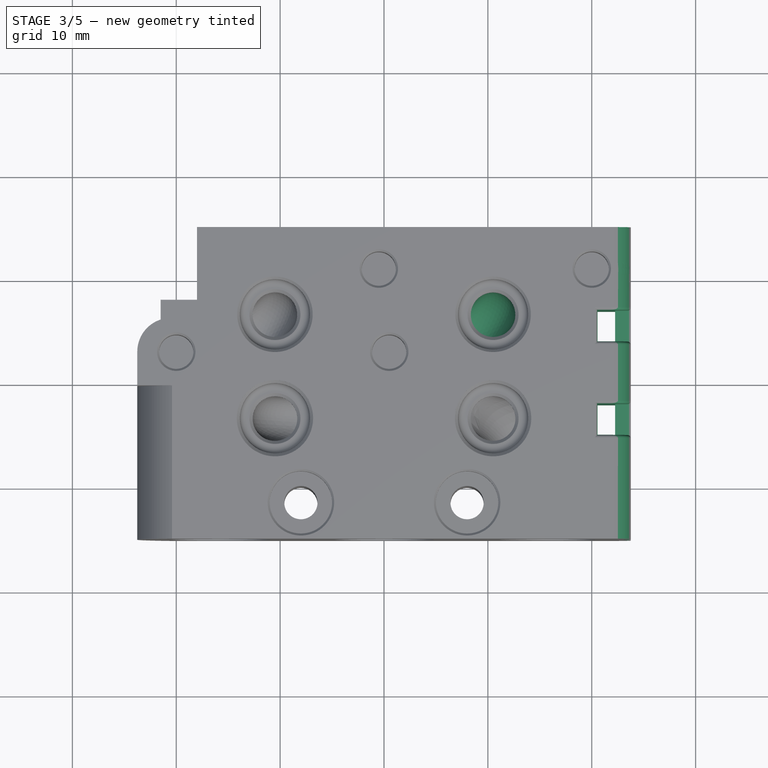
[diagram: stage 3 of 5 — top view after this stage's code; geometry added in this stage tinted green]
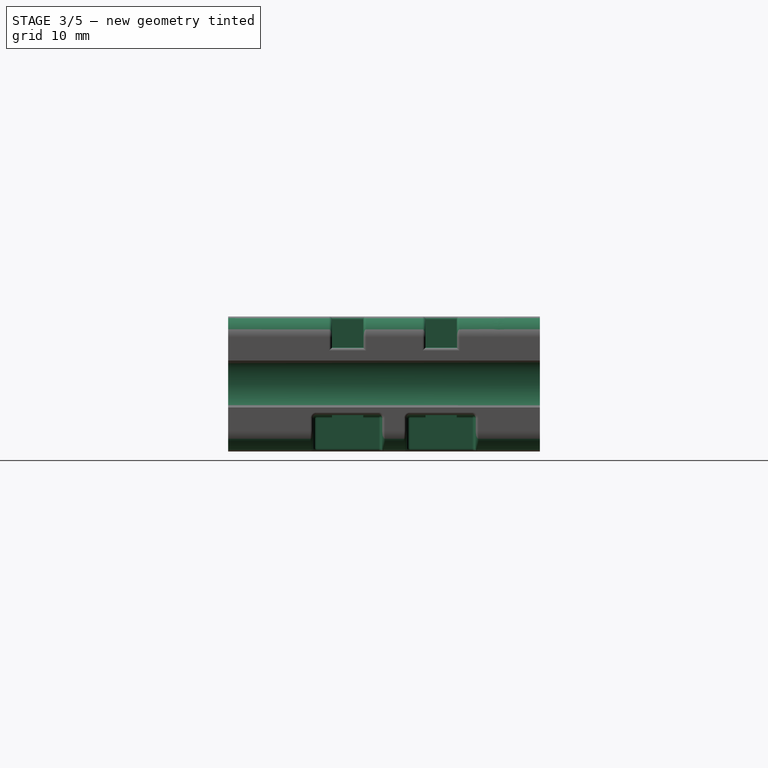
[diagram: stage 3 of 5 — right view after this stage's code; geometry added in this stage tinted green]
FEATURE [Part::Part2DObjectPython] Wire003  # Draft 2D object (typed FeaturePython)
  Area = 0
  ChamferSize = 0
  Closed = false
  End = (10.5,6.6,11.141)
  FilletRadius = 3.5
  Length = 21.9111
  MakeFace = true
  Placement = pos=(0,-8,6.5) rot=(0,0,1;0rad)
  Points = (4) [(0,0,0),(0,4,0),(10.5,14.6,0),(10.5,14.6,4.641)]
  Start = (0,-8,6.5)
  Subdivisions = 0
FEATURE [PartDesign::ShapeBinder] CopyWire004
  Placement = pos=(0,-8,6.5) rot=(0,0,1;0rad)
  TraceSupport = false
FEATURE [PartDesign::ShapeBinder] CopyCopyWire004
  Placement = pos=(0,-8,6.5) rot=(0,0,1;0rad)
  TraceSupport = false
FEATURE [PartDesign::SubtractivePipe] SubtractivePipe003
  AuxilleryCurvelinear = true
  AuxillerySpineTangent = false
  BaseFeature = -> SubtractivePipe002
  Binormal = (0,0,0)
  Mode = 0
  Profile = -> Sketch027
  Refine = true
  Sections = -> [Sketch026]
  Spine = -> CopyCopyWire004 [Edge1,Edge2,Edge3,Edge4,Edge5]
  SpineTangent = false
  Suppressed = false
  Transformation = 1
  Transition = 0
FEATURE [PartDesign::Chamfer] Chamfer
  Angle = 45
  Base = -> SubtractivePipe003 [Edge17,Edge19,Edge20,Edge22,Edge14,Edge2]
  BaseFeature = -> SubtractivePipe003
  ChamferType = 2
  FlipDirection = false
  Refine = true
  Size = 0.2
  Size2 = 1
  SupportTransform = false
  Suppressed = false
  UseAllEdges = false
FEATURE [Sketcher::SketchObject] Sketch029
  ArcFitTolerance = 1e-06
  AttachmentSupport = -> [Chamfer]
  ExternalGeometry = -> [Chamfer]
  FullyConstrained = true
  MakeInternals = false
  MapMode = 5
  Placement = pos=(0,0,13) rot=(0,0,1;0rad)
  sketch-geometry (14):
    g0: LineSegment StartX=20.55 StartY=7 StartZ=0 EndX=20.55 EndY=4 EndZ=0
    g1: LineSegment [constr] StartX=20.55 StartY=4 StartZ=0 EndX=23.75 EndY=4 EndZ=0
    g2: LineSegment [constr] StartX=23.75 StartY=4 StartZ=0 EndX=23.75 EndY=7 EndZ=0
    g3: LineSegment [constr] StartX=23.75 StartY=7 StartZ=0 EndX=20.55 EndY=7 EndZ=0
    g4: LineSegment StartX=20.55 StartY=-2 StartZ=0 EndX=20.55 EndY=-5 EndZ=0
    g5: LineSegment [constr] StartX=20.55 StartY=-5 StartZ=0 EndX=23.75 EndY=-5 EndZ=0
    g6: LineSegment [constr] StartX=23.75 StartY=-5 StartZ=0 EndX=23.75 EndY=-2 EndZ=0
    g7: LineSegment [constr] StartX=23.75 StartY=-2 StartZ=0 EndX=20.55 EndY=-2 EndZ=0
    g8: LineSegment StartX=22.25 StartY=7 StartZ=0 EndX=22.25 EndY=4 EndZ=0
    g9: LineSegment StartX=22.25 StartY=-2 StartZ=0 EndX=22.25 EndY=-5 EndZ=0
    g10: LineSegment StartX=20.55 StartY=7 StartZ=0 EndX=22.25 EndY=7 EndZ=0
    g11: LineSegment StartX=20.55 StartY=4 StartZ=0 EndX=22.25 EndY=4 EndZ=0
    g12: LineSegment StartX=20.55 StartY=-2 StartZ=0 EndX=22.25 EndY=-2 EndZ=0
    g13: LineSegment StartX=22.25 StartY=-5 StartZ=0 EndX=20.55 EndY=-5 EndZ=0
  constraints (41):
    c: Coincident(g0,g1)
    c: Coincident(g1,g2)
    c: Coincident(g2,g3)
    c: Coincident(g3,g0)
    c: Vertical(g0)
    c: Vertical(g2)
    c: Horizontal(g1)
    c: Horizontal(g3)
    c: Coincident(g4,g5)
    c: Coincident(g5,g6)
    c: Coincident(g6,g7)
    c: Coincident(g7,g4)
    c: Vertical(g4)
    c: Vertical(g6)
    c: Horizontal(g5)
    c: Horizontal(g7)
    c: PointOnObject(g8,g3)
    c: PointOnObject(g8,g1)
    c: Vertical(g8)
    c: PointOnObject(g9,g7)
    c: PointOnObject(g9,g5)
    c: Vertical(g9)
    c: Distance(g2,g8) = 1.5
    c: Distance(g0,g8) = 1.7
    c: DistanceY(g0,g0) = 3
    c: Equal(g1,g5)
    c: Distance(g6,g9) = 1.5
    c: Equal(g4,g0)
    c: Distance(g3,g-4) = 8
    c: Distance(g7,g1) = 6
    c: Distance(g-3,g-2) = 23.75
    c: Distance(g-2,g2) = 23.75
    c: Distance(g6,g-2) = 23.75
    c: Coincident(g10,g0)
    c: Coincident(g10,g8)
    c: Coincident(g11,g0)
    c: Coincident(g11,g8)
    c: Coincident(g12,g4)
    c: Coincident(g12,g9)
    c: Coincident(g13,g9)
    c: Coincident(g13,g4)
FEATURE [PartDesign::Pocket] Pocket008
  BaseFeature = -> Chamfer
  Direction = (0,0,-1)
  Length = 5
  Length2 = 5
  Profile = -> Sketch029
  ReferenceAxis = -> Sketch029 [N_Axis]
  Refine = true
  Suppressed = false
  Type = 1
FEATURE [Sketcher::SketchObject] Sketch030
  ArcFitTolerance = 1e-06
  AttachmentSupport = -> [Pocket008]
  ExternalGeometry = -> [Pocket008]
  FullyConstrained = true
  MakeInternals = false
  MapMode = 5
  Placement = pos=(0,0,13) rot=(0,0,1;0rad)
  sketch-geometry (14):
    g0: LineSegment [constr] StartX=20.55 StartY=7 StartZ=0 EndX=20.55 EndY=4 EndZ=0
    g1: LineSegment [constr] StartX=20.55 StartY=4 StartZ=0 EndX=23.75 EndY=4 EndZ=0
    g2: LineSegment StartX=23.75 StartY=4 StartZ=0 EndX=23.75 EndY=7 EndZ=0
    g3: LineSegment [constr] StartX=23.75 StartY=7 StartZ=0 EndX=20.55 EndY=7 EndZ=0
    g4: LineSegment [constr] StartX=20.55 StartY=-2 StartZ=0 EndX=20.55 EndY=-5 EndZ=0
    g5: LineSegment [constr] StartX=20.55 StartY=-5 StartZ=0 EndX=23.75 EndY=-5 EndZ=0
    g6: LineSegment StartX=23.75 StartY=-5 StartZ=0 EndX=23.75 EndY=-2 EndZ=0
    g7: LineSegment [constr] StartX=23.75 StartY=-2 StartZ=0 EndX=20.55 EndY=-2 EndZ=0
    g8: LineSegment StartX=22.25 StartY=7 StartZ=0 EndX=22.25 EndY=4 EndZ=0
    g9: LineSegment StartX=22.25 StartY=-2 StartZ=0 EndX=22.25 EndY=-5 EndZ=0
    g10: LineSegment StartX=22.25 StartY=7 StartZ=0 EndX=23.75 EndY=7 EndZ=0
    g11: LineSegment StartX=23.75 StartY=4 StartZ=0 EndX=22.25 EndY=4 EndZ=0
    g12: LineSegment StartX=22.25 StartY=-2 StartZ=0 EndX=23.75 EndY=-2 EndZ=0
    g13: LineSegment StartX=22.25 StartY=-5 StartZ=0 EndX=23.75 EndY=-5 EndZ=0
  constraints (39):
    c: Coincident(g0,g1)
    c: Coincident(g1,g2)
    c: Coincident(g2,g3)
    c: Coincident(g3,g0)
    c: Vertical(g0)
    c: Vertical(g2)
    c: Horizontal(g1)
    c: Horizontal(g3)
    c: Coincident(g4,g5)
    c: Coincident(g5,g6)
    c: Coincident(g6,g7)
    c: Coincident(g7,g4)
    c: Vertical(g4)
    c: Vertical(g6)
    c: Horizontal(g5)
    c: Horizontal(g7)
    c: PointOnObject(g8,g3)
    c: PointOnObject(g8,g1)
    c: Vertical(g8)
    c: PointOnObject(g9,g7)
    c: PointOnObject(g9,g5)
    c: Vertical(g9)
    c: Distance(g2,g8) = 1.5
    c: Distance(g0,g8) = 1.7
    c: DistanceY(g0,g0) = 3
    c: Equal(g1,g5)
    c: Distance(g6,g9) = 1.5
    c: Equal(g4,g0)
    c: Distance(g7,g1) = 6
    c: Distance(g6,g-2) = 23.75
    c: Coincident(g10,g8)
    c: Coincident(g10,g2)
    c: Coincident(g11,g1)
    c: Coincident(g11,g8)
    c: Coincident(g8,g-3)
    c: Coincident(g12,g9)
    c: Coincident(g12,g6)
    c: Coincident(g13,g9)
    c: Coincident(g13,g5)
FEATURE [PartDesign::Pocket] Pocket009
  BaseFeature = -> Pocket008
  Direction = (0,0,-1)
  Length = 3
  Length2 = 5
  Profile = -> Sketch030
  ReferenceAxis = -> Sketch030 [N_Axis]
  Refine = true
  Suppressed = false
  Type = 0
FEATURE [Sketcher::SketchObject] Sketch031
  ArcFitTolerance = 1e-06
  AttachmentSupport = -> [Pocket009]
  ExternalGeometry = -> [Pocket009]
  FullyConstrained = true
  MakeInternals = false
  MapMode = 5
  Placement = pos=(0,0,1e-15) rot=(1,0,0;3.14159rad)
  sketch-geometry (8):
    g0: LineSegment StartX=20.55 StartY=-2.2 StartZ=0 EndX=20.55 EndY=-8.8 EndZ=0
    g1: LineSegment StartX=20.55 StartY=-8.8 StartZ=0 EndX=23.75 EndY=-8.8 EndZ=0
    g2: LineSegment StartX=23.75 StartY=-8.8 StartZ=0 EndX=23.75 EndY=-2.2 EndZ=0
    g3: LineSegment StartX=23.75 StartY=-2.2 StartZ=0 EndX=20.55 EndY=-2.2 EndZ=0
    g4: LineSegment StartX=23.75 StartY=0.2 StartZ=0 EndX=23.75 EndY=6.8 EndZ=0
    g5: LineSegment StartX=23.75 StartY=6.8 StartZ=0 EndX=20.55 EndY=6.8 EndZ=0
    g6: LineSegment StartX=20.55 StartY=6.8 StartZ=0 EndX=20.55 EndY=0.2 EndZ=0
    g7: LineSegment StartX=20.55 StartY=0.2 StartZ=0 EndX=23.75 EndY=0.2 EndZ=0
  constraints (24):
    c: Coincident(g0,g1)
    c: Coincident(g1,g2)
    c: Coincident(g2,g3)
    c: Coincident(g3,g0)
    c: Vertical(g0)
    c: Vertical(g2)
    c: Horizontal(g1)
    c: Horizontal(g3)
    c: Distance(g3,g-5) = 1.8
    c: Distance(g1,g-6) = 1.8
    c: Distance(g-2,g2) = 23.75
    c: Distance(g2,g0) = 3.2
    c: Coincident(g4,g5)
    c: Coincident(g5,g6)
    c: Coincident(g6,g7)
    c: Coincident(g7,g4)
    c: Vertical(g4)
    c: Vertical(g6)
    c: Horizontal(g5)
    c: Horizontal(g7)
    c: Distance(g7,g-4) = 1.8
    c: Distance(g5,g-3) = 1.8
    c: Distance(g-9,g6) = 3.2
    c: PointOnObject(g4,g-9)
FEATURE [PartDesign::Pocket] Pocket010
  BaseFeature = -> Pocket009
  Direction = (0,0,1)
  Length = 3.5
  Length2 = 5
  Profile = -> Sketch031
  ReferenceAxis = -> Sketch031 [N_Axis]
  Refine = true
  Suppressed = false
  Type = 0
FEATURE [PartDesign::Fillet] Fillet
  Base = -> Pocket010 [Edge8,Edge14,Edge20,Edge47,Edge43,Edge51]
  BaseFeature = -> Pocket010
  Radius = 2
  Refine = true
  SupportTransform = false
  Suppressed = false
  UseAllEdges = false
FEATURE [PartDesign::Fillet] Fillet001
  Base = -> Fillet [Edge10,Edge8,Edge46,Edge47,Edge126,Edge128,Edge129,Edge67,Edge62,Edge12,Edge16,Edge68,Edge70,Edge131,Edge132,Edge130,Edge93,Edge92,Edge20,Edge18,Edge212,Edge168,Edge167,Edge166,Edge156,Edge157,Edge208,Edge146,Edge124,Edge211,Edge122,Edge141,Edge140,Edge139,Edge138,Edge165,Edge213,Edge164,Edge125,Edge170,+14 more]
  BaseFeature = -> Fillet
  Radius = 0.3
  Refine = true
  SupportTransform = false
  Suppressed = false
  UseAllEdges = false
FEATURE [Sketcher::SketchObject] Sketch032
  ArcFitTolerance = 1e-06
  AttachmentSupport = -> [Fillet001]
  ExternalGeometry = -> [Fillet001]
  FullyConstrained = true
  MakeInternals = false
  MapMode = 5
  Placement = pos=(0,-15,3.3e-15) rot=(1,0,0;1.5708rad)
  sketch-geometry (5):
    g0: Ellipse CenterX=24.75 CenterY=6.5 CenterZ=0 NormalX=0 NormalY=0 NormalZ=1 MajorRadius=2.8 MinorRadius=1.7 AngleXU=-1.5708
    g1: LineSegment [constr] StartX=24.75 StartY=3.7 StartZ=0 EndX=24.75 EndY=9.3 EndZ=0
    g2: LineSegment [constr] StartX=26.45 StartY=6.5 StartZ=0 EndX=23.05 EndY=6.5 EndZ=0
    g3: GeomPoint [constr] X=24.75 Y=4.27514 Z=0
    g4: GeomPoint [constr] X=24.75 Y=8.72486 Z=0
  constraints (6):
    c: InternalAlignment(g1-g4 -> g0) x4
    c: Distance(g0,g1) = 2.8
    c: Angle(g1) = 1.5708
    c: Distance(g0,g2) = 1.7
    c: Distance(g0,g-3) = 1
    c: DistanceY(g-1,g0) = 6.5
FEATURE [PartDesign::Pocket] Pocket011
  BaseFeature = -> Fillet001
  Direction = (0,1,-2e-16)
  Length = 5
  Length2 = 5
  Profile = -> Sketch032
  ReferenceAxis = -> Sketch032 [N_Axis]
  Refine = true
  Suppressed = false
  Type = 1
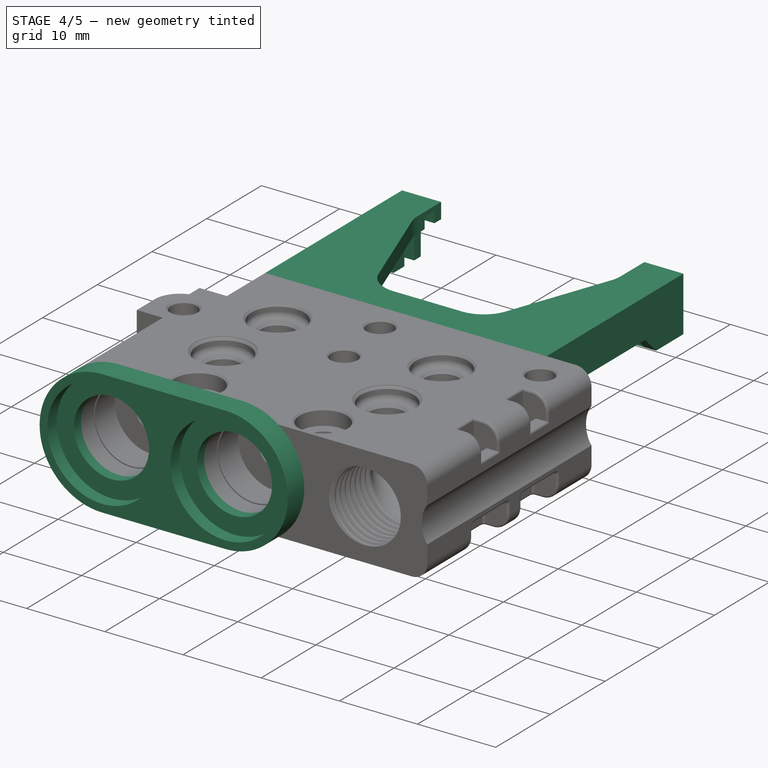
[diagram: stage 4 of 5 — iso view after this stage's code; geometry added in this stage tinted green]
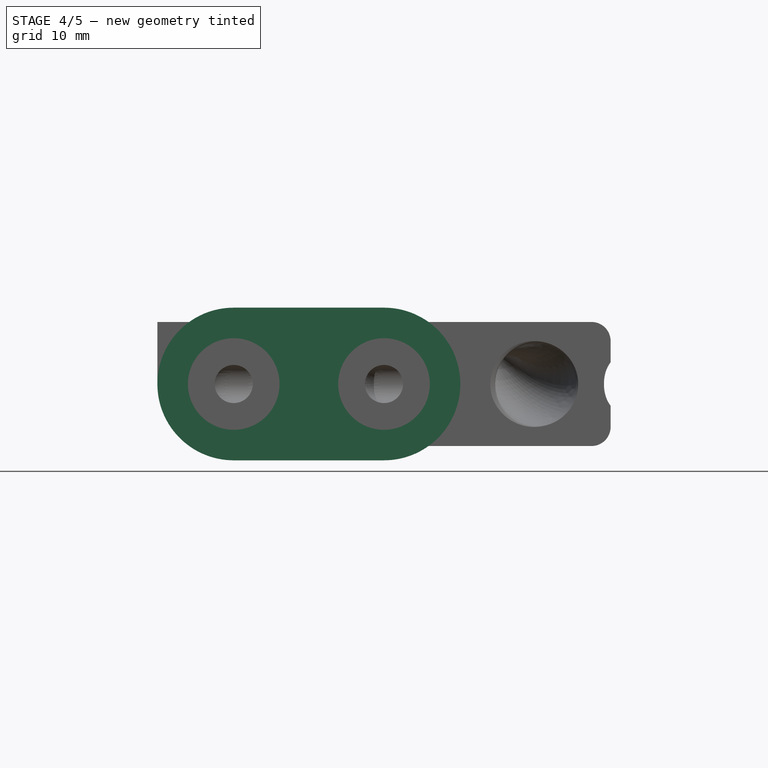
[diagram: stage 4 of 5 — front view after this stage's code; geometry added in this stage tinted green]
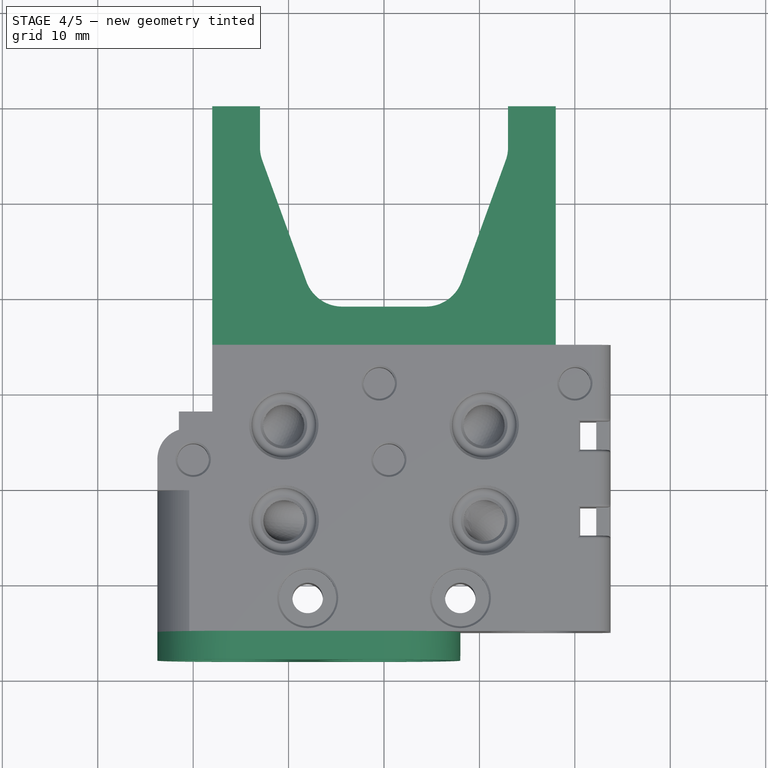
[diagram: stage 4 of 5 — top view after this stage's code; geometry added in this stage tinted green]
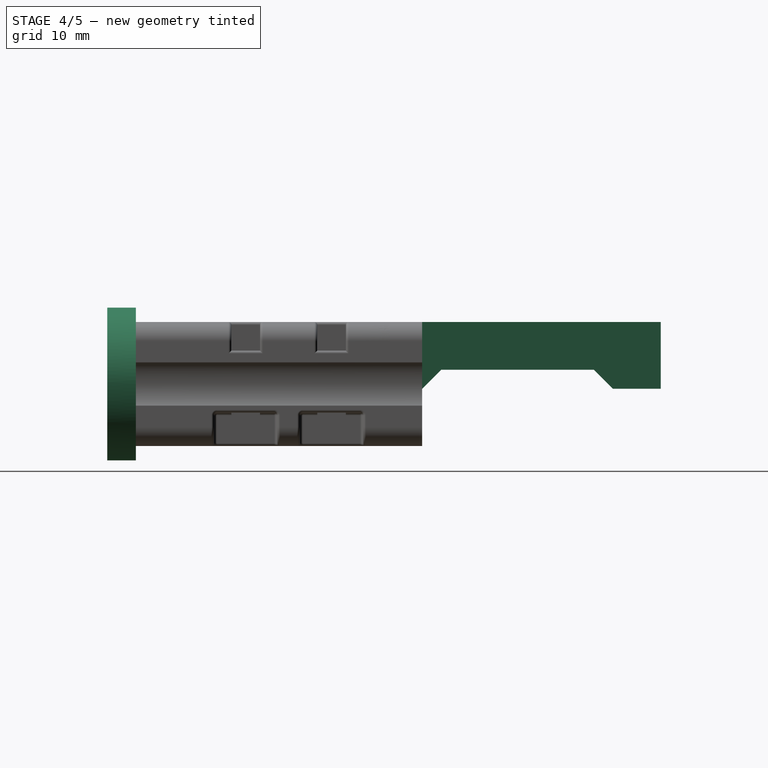
[diagram: stage 4 of 5 — right view after this stage's code; geometry added in this stage tinted green]
FEATURE [Sketcher::SketchObject] Sketch033
  ArcFitTolerance = 1e-06
  AttachmentSupport = -> [Pocket011]
  ExternalGeometry = -> [Pocket011]
  FullyConstrained = true
  MakeInternals = false
  MapMode = 5
  Placement = pos=(0,-15,3.3e-15) rot=(1,0,0;1.5708rad)
  sketch-geometry (4):
    g0: ArcOfCircle CenterX=-15.75 CenterY=6.5 CenterZ=0 NormalX=0 NormalY=0 NormalZ=1 AngleXU=0 Radius=8 StartAngle=1.5708 EndAngle=4.71239
    g1: ArcOfCircle CenterX=0 CenterY=6.5 CenterZ=0 NormalX=0 NormalY=0 NormalZ=1 AngleXU=0 Radius=8 StartAngle=4.71239 EndAngle=7.85398
    g2: LineSegment StartX=-15.75 StartY=14.5 StartZ=0 EndX=-1.8e-15 EndY=14.5 EndZ=0
    g3: LineSegment StartX=-15.75 StartY=-1.5 StartZ=0 EndX=-1.8e-15 EndY=-1.5 EndZ=0
  constraints (8):
    c: Tangent(g0,g2) = 1.5708
    c: Tangent(g0,g3) = -1.5708
    c: Tangent(g1,g2) = 1.5708
    c: Tangent(g1,g3) = -1.5708
    c: Equal(g0,g1)
    c: Coincident(g0,g-3)
    c: Coincident(g1,g-4)
    c: Radius(g0) = 8
FEATURE [PartDesign::Pad] Pad002
  BaseFeature = -> Pocket011
  Direction = (0,-1,2e-16)
  Length = 3
  Length2 = 10
  Profile = -> Sketch033
  ReferenceAxis = -> Sketch033 [N_Axis]
  Refine = true
  Suppressed = false
  Type = 0
FEATURE [Sketcher::SketchObject] Sketch034
  ArcFitTolerance = 1e-06
  AttachmentSupport = -> [Pad002]
  ExternalGeometry = -> [Pad002]
  FullyConstrained = true
  MakeInternals = false
  MapMode = 5
  Placement = pos=(0,-18,4e-15) rot=(1,0,0;1.5708rad)
  sketch-geometry (2):
    g0: Circle CenterX=-15.75 CenterY=6.5 CenterZ=0 NormalX=0 NormalY=0 NormalZ=1 AngleXU=0 Radius=7
    g1: Circle CenterX=0 CenterY=6.5 CenterZ=0 NormalX=0 NormalY=0 NormalZ=1 AngleXU=0 Radius=7
  constraints (4):
    c: Diameter(g0) = 14
    c: Diameter(g1) = 14
    c: Coincident(g0,g-3)
    c: Coincident(g-4,g1)
FEATURE [PartDesign::Pocket] Pocket012
  BaseFeature = -> Pad002
  Direction = (0,1,-2e-16)
  Length = 1.7
  Length2 = 5
  Profile = -> Sketch034
  ReferenceAxis = -> Sketch034 [N_Axis]
  Refine = true
  Suppressed = false
  Type = 0
FEATURE [Sketcher::SketchObject] Sketch035
  ArcFitTolerance = 1e-06
  AttachmentSupport = -> [Pocket012]
  ExternalGeometry = -> [Pocket012]
  FullyConstrained = true
  MakeInternals = false
  MapMode = 5
  Placement = pos=(0,-16.3,4.7e-15) rot=(1,0,0;1.5708rad)
  sketch-geometry (2):
    g0: Circle CenterX=-15.75 CenterY=6.5 CenterZ=0 NormalX=0 NormalY=0 NormalZ=1 AngleXU=0 Radius=4.8
    g1: Circle CenterX=0 CenterY=6.5 CenterZ=0 NormalX=0 NormalY=0 NormalZ=1 AngleXU=0 Radius=4.8
  constraints (4):
    c: Coincident(g0,g-3)
    c: Equal(g0,g-3)
    c: Coincident(g1,g-4)
    c: Equal(g1,g-4)
FEATURE [PartDesign::Pocket] Pocket013
  BaseFeature = -> Pocket012
  Direction = (0,1,-2e-16)
  Length = 1.3
  Length2 = 5
  Profile = -> Sketch035
  ReferenceAxis = -> Sketch035 [N_Axis]
  Refine = true
  Suppressed = false
  Type = 0
FEATURE [Sketcher::SketchObject] Sketch036
  ArcFitTolerance = 1e-06
  AttachmentSupport = -> [Pocket013]
  ExternalGeometry = -> [Pocket013]
  FullyConstrained = true
  MakeInternals = false
  MapMode = 5
  Placement = pos=(0,0,13) rot=(0,0,1;0rad)
  sketch-geometry (18):
    g0: LineSegment StartX=-18 StartY=15 StartZ=0 EndX=-18 EndY=40 EndZ=0
    g1: LineSegment StartX=-18 StartY=40 StartZ=0 EndX=-13 EndY=40 EndZ=0
    g2: LineSegment StartX=-13 StartY=40 StartZ=0 EndX=-13 EndY=35.7053 EndZ=0
    g3: LineSegment StartX=-12.7588 StartY=34.3372 StartZ=0 EndX=-8.13442 EndY=21.6319 EndZ=0
    g4: LineSegment StartX=-4.37565 StartY=19 StartZ=0 EndX=4.37565 EndY=19 EndZ=0
    g5: LineSegment StartX=18 StartY=15 StartZ=0 EndX=18 EndY=40 EndZ=0
    g6: LineSegment StartX=18 StartY=40 StartZ=0 EndX=13 EndY=40 EndZ=0
    g7: LineSegment StartX=13 StartY=40 StartZ=0 EndX=13 EndY=35.7053 EndZ=0
    g8: LineSegment StartX=12.7588 StartY=34.3372 StartZ=0 EndX=8.13442 EndY=21.6319 EndZ=0
    g9: ArcOfCircle CenterX=-9 CenterY=35.7053 CenterZ=0 NormalX=0 NormalY=0 NormalZ=1 AngleXU=0 Radius=4 StartAngle=3.14159 EndAngle=3.49066
    g10: GeomPoint [constr] X=-13 Y=35 Z=0
    g11: ArcOfCircle CenterX=-4.37565 CenterY=23 CenterZ=0 NormalX=0 NormalY=0 NormalZ=1 AngleXU=0 Radius=4 StartAngle=3.49066 EndAngle=4.71239
    g12: GeomPoint [constr] X=-7.17648 Y=19 Z=0
    g13: ArcOfCircle CenterX=4.37565 CenterY=23 CenterZ=0 NormalX=0 NormalY=0 NormalZ=1 AngleXU=0 Radius=4 StartAngle=4.71239 EndAngle=5.93412
    g14: GeomPoint [constr] X=7.17648 Y=19 Z=0
    g15: ArcOfCircle CenterX=9 CenterY=35.7053 CenterZ=0 NormalX=0 NormalY=0 NormalZ=1 AngleXU=0 Radius=4 StartAngle=5.93412 EndAngle=6.28319
    g16: GeomPoint [constr] X=13 Y=35 Z=0
    g17: LineSegment StartX=-18 StartY=15 StartZ=0 EndX=18 EndY=15 EndZ=0
  constraints (44):
    c: Distance(g0) = 25
    c: Coincident(g0,g-4)
    c: Vertical(g0)
    c: Distance(g1) = 5
    c: Coincident(g1,g0)
    c: Horizontal(g1)
    c: Distance(g2,g10) = 5
    c: Coincident(g2,g1)
    c: Vertical(g2)
    c: Distance(g-3,g4) = 4
    c: Symmetric(g14,g12,g-2)
    c: Distance(g5) = 25
    c: Vertical(g5)
    c: PointOnObject(g5,g-3)
    c: Distance(g5,g-2) = 18
    c: Distance(g6) = 5
    c: Coincident(g6,g5)
    c: Horizontal(g6)
    c: Distance(g7,g16) = 5
    c: Coincident(g7,g6)
    c: Vertical(g7)
    c: PointOnObject(g10,g2)
    c: PointOnObject(g10,g3)
    c: Tangent(g2,g9) = -1.5708
    c: Tangent(g3,g9) = -1.5708
    c: PointOnObject(g12,g3)
    c: PointOnObject(g12,g4)
    c: Tangent(g3,g11) = -1.5708
    c: Tangent(g4,g11) = -1.5708
    c: PointOnObject(g14,g4)
    c: PointOnObject(g14,g8)
    c: Tangent(g4,g13) = -1.5708
    c: Tangent(g8,g13) = 1.5708
    c: PointOnObject(g16,g8)
    c: PointOnObject(g16,g7)
    c: Tangent(g8,g15) = 1.5708
    c: Tangent(g7,g15) = 1.5708
    c: Equal(g15,g13)
    c: Equal(g13,g11)
    c: Equal(g11,g9)
    c: Radius(g9) = 4
    c: Angle(g8,g7) = 0.349066
    c: Coincident(g17,g0)
    c: Coincident(g17,g5)
FEATURE [PartDesign::Pad] Pad003
  BaseFeature = -> Pocket013
  Direction = (0,0,1)
  Length = 2
  Length2 = 10
  Profile = -> Sketch036
  ReferenceAxis = -> Sketch036 [N_Axis]
  Refine = true
  Reversed = true
  Suppressed = false
  Type = 0
FEATURE [Sketcher::SketchObject] Sketch037
  ArcFitTolerance = 1e-06
  AttachmentSupport = -> [Pad003]
  ExternalGeometry = -> [Pad003]
  FullyConstrained = true
  MakeInternals = false
  MapMode = 5
  Placement = pos=(0,0,11) rot=(1,0,0;3.14159rad)
  sketch-geometry (14):
    g0: LineSegment StartX=-16.5 StartY=-15 StartZ=0 EndX=-18 EndY=-15 EndZ=0
    g1: LineSegment StartX=-18 StartY=-15 StartZ=0 EndX=-18 EndY=-40 EndZ=0
    g2: LineSegment StartX=-18 StartY=-40 StartZ=0 EndX=-16.5 EndY=-40 EndZ=0
    g3: LineSegment StartX=-16.5 StartY=-35 StartZ=0 EndX=-16.5 EndY=-15 EndZ=0
    g4: LineSegment StartX=16.5 StartY=-15 StartZ=0 EndX=16.5 EndY=-35 EndZ=0
    g5: LineSegment StartX=16.5 StartY=-40 StartZ=0 EndX=18 EndY=-40 EndZ=0
    g6: LineSegment StartX=18 StartY=-40 StartZ=0 EndX=18 EndY=-15 EndZ=0
    g7: LineSegment StartX=18 StartY=-15 StartZ=0 EndX=16.5 EndY=-15 EndZ=0
    g8: LineSegment StartX=16.5 StartY=-35 StartZ=0 EndX=15.6 EndY=-35 EndZ=0
    g9: LineSegment StartX=15.6 StartY=-35 StartZ=0 EndX=15.6 EndY=-40 EndZ=0
    g10: LineSegment StartX=15.6 StartY=-40 StartZ=0 EndX=16.5 EndY=-40 EndZ=0
    g11: LineSegment StartX=-16.5 StartY=-40 StartZ=0 EndX=-15.6 EndY=-40 EndZ=0
    g12: LineSegment StartX=-15.6 StartY=-40 StartZ=0 EndX=-15.6 EndY=-35 EndZ=0
    g13: LineSegment StartX=-15.6 StartY=-35 StartZ=0 EndX=-16.5 EndY=-35 EndZ=0
  constraints (40):
    c: Coincident(g0,g1)
    c: Coincident(g1,g2)
    c: Coincident(g3,g0)
    c: Horizontal(g0)
    c: Horizontal(g2)
    c: Vertical(g1)
    c: Vertical(g3)
    c: PointOnObject(g0,g-3)
    c: Coincident(g1,g-5)
    c: Coincident(g5,g6)
    c: Coincident(g6,g7)
    c: Coincident(g7,g4)
    c: Vertical(g4)
    c: Vertical(g6)
    c: Horizontal(g5)
    c: Horizontal(g7)
    c: PointOnObject(g4,g-3)
    c: Coincident(g5,g-7)
    c: DistanceX(g2,g2) = 1.5
    c: DistanceX(g5,g5) = 1.5
    c: Coincident(g8,g9)
    c: Coincident(g9,g10)
    c: Vertical(g9)
    c: Horizontal(g8)
    c: Horizontal(g10)
    c: Distance(g10,g9) = 0.9
    c: Coincident(g11,g12)
    c: Coincident(g12,g13)
    c: Horizontal(g11)
    c: Horizontal(g13)
    c: Vertical(g12)
    c: Distance(g12,g11) = 0.9
    c: Coincident(g11,g2)
    c: DistanceY(g9,g9) = 5
    c: DistanceY(g12,g12) = 5
    c: Distance(g1,g3) = 1.5
    c: Distance(g6,g4) = 1.5
    c: Coincident(g13,g3)
    c: Coincident(g4,g8)
    c: Coincident(g10,g5)
FEATURE [PartDesign::Pad] Pad004
  BaseFeature = -> Pad003
  Direction = (0,0,-1)
  Length = 5
  Length2 = 10
  Profile = -> Sketch037
  ReferenceAxis = -> Sketch037 [N_Axis]
  Refine = true
  Suppressed = false
  Type = 0
FEATURE [Sketcher::SketchObject] Sketch038
  ArcFitTolerance = 1e-06
  AttachmentSupport = -> [Pad004]
  ExternalGeometry = -> [Pad004]
  FullyConstrained = true
  MakeInternals = false
  MapMode = 5
  Placement = pos=(0,0,6) rot=(1,0,0;3.14159rad)
  sketch-geometry (4):
    g0: LineSegment StartX=-17.1 StartY=-37 StartZ=0 EndX=-17.1 EndY=-38.8 EndZ=0
    g1: LineSegment StartX=-17.1 StartY=-38.8 StartZ=0 EndX=17.1 EndY=-38.8 EndZ=0
    g2: LineSegment StartX=17.1 StartY=-38.8 StartZ=0 EndX=17.1 EndY=-37 EndZ=0
    g3: LineSegment StartX=17.1 StartY=-37 StartZ=0 EndX=-17.1 EndY=-37 EndZ=0
  constraints (12):
    c: Coincident(g0,g1)
    c: Coincident(g1,g2)
    c: Coincident(g2,g3)
    c: Coincident(g3,g0)
    c: Vertical(g0)
    c: Vertical(g2)
    c: Horizontal(g1)
    c: Horizontal(g3)
    c: Distance(g-3,g0) = 0.9
    c: Distance(g-5,g2) = 0.9
    c: Distance(g-4,g1) = 1.2
    c: Distance(g1,g3) = 1.8
FEATURE [PartDesign::Pocket] Pocket014
  BaseFeature = -> Pad004
  Direction = (0,0,1)
  Length = 6.4
  Length2 = 5
  Profile = -> Sketch038
  ReferenceAxis = -> Sketch038 [N_Axis]
  Refine = true
  Suppressed = false
  Type = 0
FEATURE [PartDesign::Chamfer] Chamfer001
  Angle = 45
  Base = -> Pocket014 [Edge237,Edge244]
  BaseFeature = -> Pocket014
  ChamferType = 0
  FlipDirection = false
  Refine = true
  Size = 0.9
  Size2 = 1
  SupportTransform = false
  Suppressed = false
  UseAllEdges = false
FEATURE [Sketcher::SketchObject] Sketch039
  ArcFitTolerance = 1e-06
  AttachmentSupport = -> [Chamfer001]
  ExternalGeometry = -> [Chamfer001]
  FullyConstrained = true
  MakeInternals = false
  MapMode = 5
  Placement = pos=(-18,0,0) rot=(0.57735,-0.57735,-0.57735;2.0944rad)
  sketch-geometry (4):
    g0: LineSegment StartX=-15 StartY=6 StartZ=0 EndX=-17 EndY=8 EndZ=0
    g1: LineSegment StartX=-17 StartY=8 StartZ=0 EndX=-33 EndY=8 EndZ=0
    g2: LineSegment StartX=-33 StartY=8 StartZ=0 EndX=-35 EndY=6 EndZ=0
    g3: LineSegment StartX=-35 StartY=6 StartZ=0 EndX=-15 EndY=6 EndZ=0
  constraints (11):
    c: Coincident(g0,g-3)
    c: Coincident(g1,g0)
    c: Horizontal(g1)
    c: PointOnObject(g2,g-3)
    c: Coincident(g3,g2)
    c: Coincident(g3,g0)
    c: Distance(g1,g-4) = 5
    c: Angle(g2,g1) = 2.35619
    c: Angle(g1,g0) = 2.35619
    c: Coincident(g1,g2)
    c: DistanceX(g1,g1) = 16
FEATURE [PartDesign::Pocket] Pocket015
  BaseFeature = -> Chamfer001
  Direction = (1,0,0)
  Length = 5
  Length2 = 5
  Profile = -> Sketch039
  ReferenceAxis = -> Sketch039 [N_Axis]
  Refine = true
  Suppressed = false
  Type = 1
FEATURE [Sketcher::SketchObject] Sketch040
  ArcFitTolerance = 1e-06
  AttachmentSupport = -> [Pocket015]
  ExternalGeometry = -> [Pocket015]
  FullyConstrained = true
  MakeInternals = false
  MapMode = 5
  Placement = pos=(0,15,0) rot=(0,0.707107,0.707107;3.14159rad)
  sketch-geometry (4):
    g0: Circle CenterX=-20.75 CenterY=3 CenterZ=0 NormalX=0 NormalY=0 NormalZ=1 AngleXU=0 Radius=1.65
    g1: Circle CenterX=-13.875 CenterY=8.375 CenterZ=0 NormalX=0 NormalY=0 NormalZ=1 AngleXU=0 Radius=1.65
    g2: Circle CenterX=11.2 CenterY=3 CenterZ=0 NormalX=0 NormalY=0 NormalZ=1 AngleXU=0 Radius=1.65
    g3: Circle CenterX=-0.6 CenterY=5.6 CenterZ=0 NormalX=0 NormalY=0 NormalZ=1 AngleXU=0 Radius=0.6
  constraints (12):
    c: Diameter(g0) = 3.3
    c: Diameter(g2) = 3.3
    c: Diameter(g3) = 1.2
    c: DistanceY(g-1,g0) = 3
    c: DistanceY(g-1,g2) = 3
    c: Distance(g2,g-3) = 6.8
    c: DistanceY(g-1,g3) = 5.6
    c: DistanceY(g-1,g1) = 8.375
    c: Distance(g0,g-4) = 3
    c: Distance(g1,g-5) = 2.625
    c: Distance(g3,g-5) = 15.9
    c: Diameter(g1) = 3.3
FEATURE [PartDesign::Pocket] Pocket016
  BaseFeature = -> Pocket015
  Direction = (0,-1,2e-16)
  Length = 5.5
  Length2 = 5
  Profile = -> Sketch040 [Edge1]
  ReferenceAxis = -> Sketch040 [N_Axis]
  Refine = true
  Suppressed = false
  Type = 0
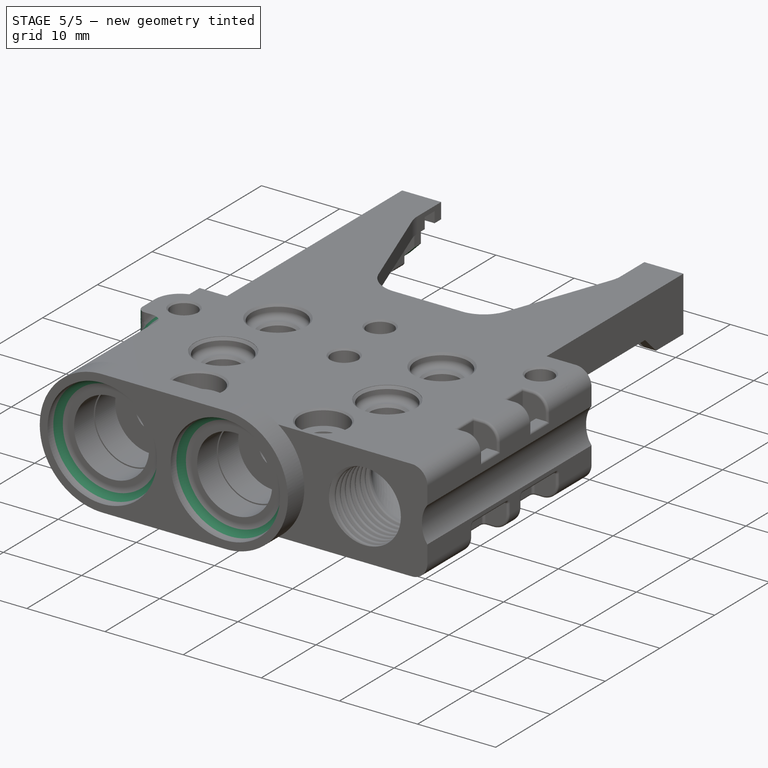
[diagram: stage 5 of 5 — iso view after this stage's code; geometry added in this stage tinted green]
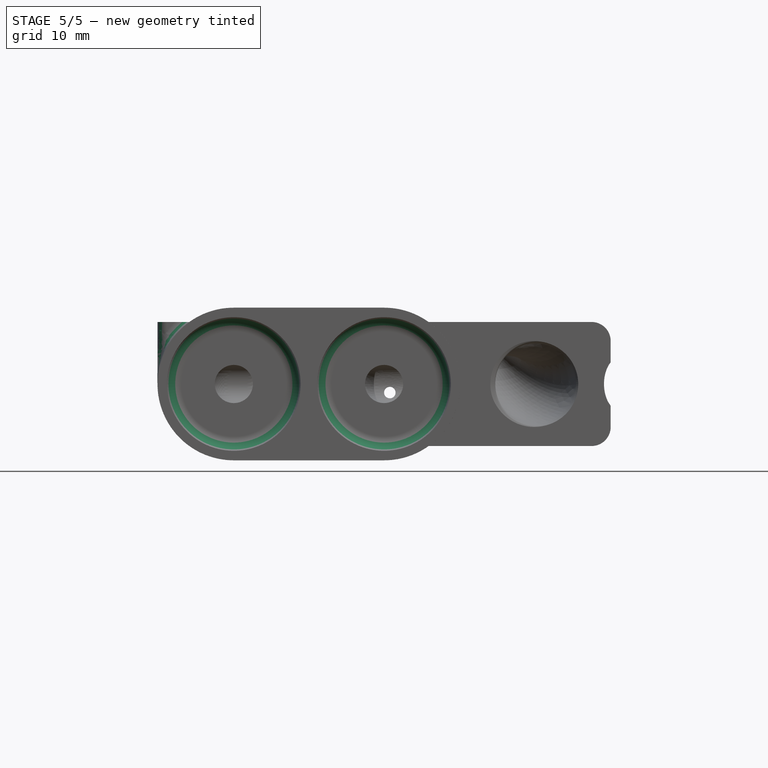
[diagram: stage 5 of 5 — front view after this stage's code; geometry added in this stage tinted green]
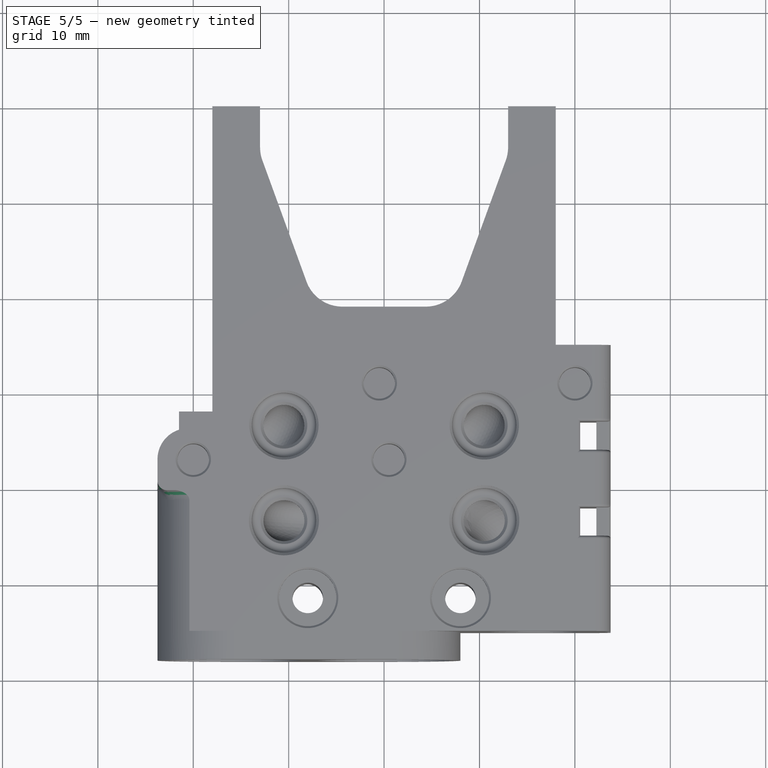
[diagram: stage 5 of 5 — top view after this stage's code; geometry added in this stage tinted green]
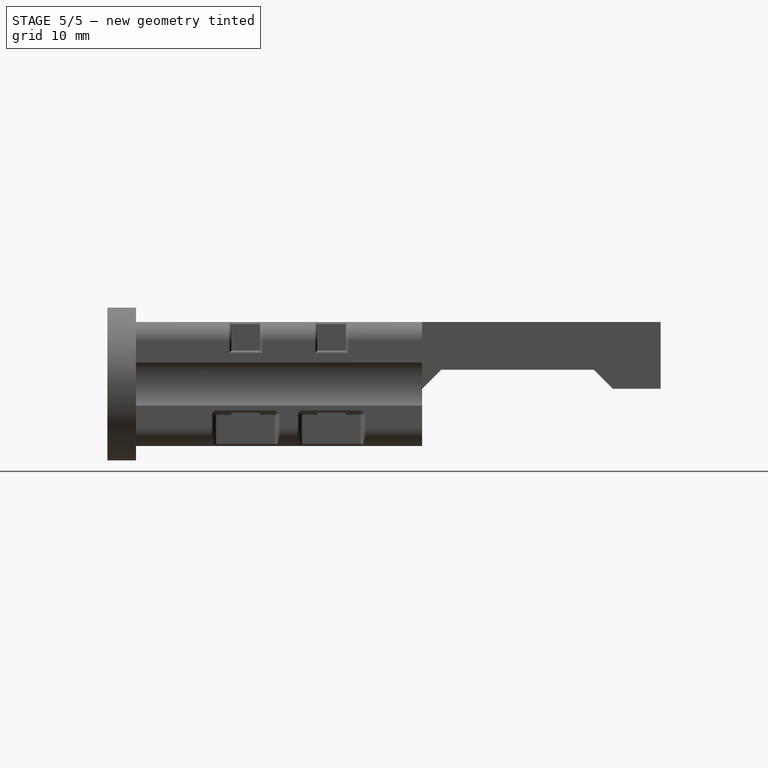
[diagram: stage 5 of 5 — right view after this stage's code; geometry added in this stage tinted green]
FEATURE [PartDesign::Pocket] Pocket017
  BaseFeature = -> Pocket016
  Direction = (0,-1,2e-16)
  Length = 5
  Length2 = 5
  Profile = -> Sketch040 [Edge4]
  ReferenceAxis = -> Sketch040 [N_Axis]
  Refine = true
  Suppressed = false
  Type = 1
FEATURE [PartDesign::Pocket] Pocket018
  BaseFeature = -> Pocket017
  Direction = (0,-1,2e-16)
  Length = 6
  Length2 = 5
  Profile = -> Sketch040 [Edge2,Edge3]
  ReferenceAxis = -> Sketch040 [N_Axis]
  Refine = true
  Suppressed = false
  Type = 0
FEATURE [PartDesign::Chamfer] Chamfer002
  Angle = 45
  Base = -> Pocket018 [Edge9,Edge42,Edge41]
  BaseFeature = -> Pocket018
  ChamferType = 0
  FlipDirection = false
  Refine = true
  Size = 0.3
  Size2 = 1
  SupportTransform = false
  Suppressed = false
  UseAllEdges = false
FEATURE [PartDesign::Chamfer] Chamfer003
  Angle = 45
  Base = -> Chamfer002 [Edge179,Edge172]
  BaseFeature = -> Chamfer002
  ChamferType = 0
  FlipDirection = false
  Refine = true
  Size = 1.5
  Size2 = 1
  SupportTransform = false
  Suppressed = false
  UseAllEdges = false
FEATURE [PartDesign::Fillet] Fillet002
  Base = -> Chamfer003 [Edge32,Edge33,Edge324,Edge59,Edge8,Edge150]
  BaseFeature = -> Chamfer003
  Radius = 0.5
  Refine = true
  SupportTransform = false
  Suppressed = false
  UseAllEdges = false
FEATURE [PartDesign::Fillet] Fillet003
  Base = -> Fillet002 [Edge627,Edge629]
  BaseFeature = -> Fillet002
  Radius = 1.5
  Refine = true
  SupportTransform = false
  Suppressed = false
  UseAllEdges = false
FEATURE [Sketcher::SketchObject] Sketch041
  ArcFitTolerance = 1e-06
  AttachmentSupport = -> [Fillet003]
  ExternalGeometry = -> [Fillet003]
  FullyConstrained = true
  MakeInternals = false
  MapMode = 5
  Placement = pos=(-18,0,0) rot=(0.57735,-0.57735,-0.57735;2.0944rad)
  sketch-geometry (1):
    g0: Circle CenterX=-11.5 CenterY=9.5 CenterZ=0 NormalX=0 NormalY=0 NormalZ=1 AngleXU=0 Radius=1.65
  constraints (3):
    c: Diameter(g0) = 3.3
    c: Distance(g0,g-4) = 3.5
    c: Distance(g0,g-3) = 3.5
FEATURE [PartDesign::Pocket] Pocket019
  BaseFeature = -> Fillet003
  Direction = (1,0,0)
  Length = 5.5
  Length2 = 5
  Profile = -> Sketch041
  ReferenceAxis = -> Sketch041 [N_Axis]
  Refine = true
  Suppressed = false
  Type = 0
FEATURE [PartDesign::Chamfer] Chamfer004
  Angle = 45
  Base = -> Pocket019 [Edge195]
  BaseFeature = -> Pocket019
  ChamferType = 0
  FlipDirection = false
  Refine = true
  Size = 0.3
  Size2 = 1
  SupportTransform = false
  Suppressed = false
  UseAllEdges = false
FEATURE [PartDesign::Fillet] Fillet004
  Base = -> Chamfer004 [Edge150,Edge250]
  BaseFeature = -> Chamfer004
  Radius = 1
  Refine = true
  SupportTransform = false
  Suppressed = false
  UseAllEdges = false
FEATURE [PartDesign::Body] Body
  AllowCompound = false
  Group = -> [Sketch,Pad,Sketch001,Pad001,Sketch002,Pocket,Sketch003,Pocket001,Sketch004,Pocket002,Pocket003,DatumPlane,Sketch005,DatumPlane001,DatumPlane002,Groove,Mirrored,Sketch006,Groove001,Mirrored001,Sketch007,Pocket004,Pocket005,Pocket006,Sketch008,Pocket007,Sketch009,Sketch010,DatumPlane003,Sketch013,Sketch014,DatumPlane004,Sketch015,SubtractivePipe,CopyWire,Sketch016,DatumLine,SubtractiveHelix,+56 more]
  Origin = -> Origin
  Tip = -> Fillet004
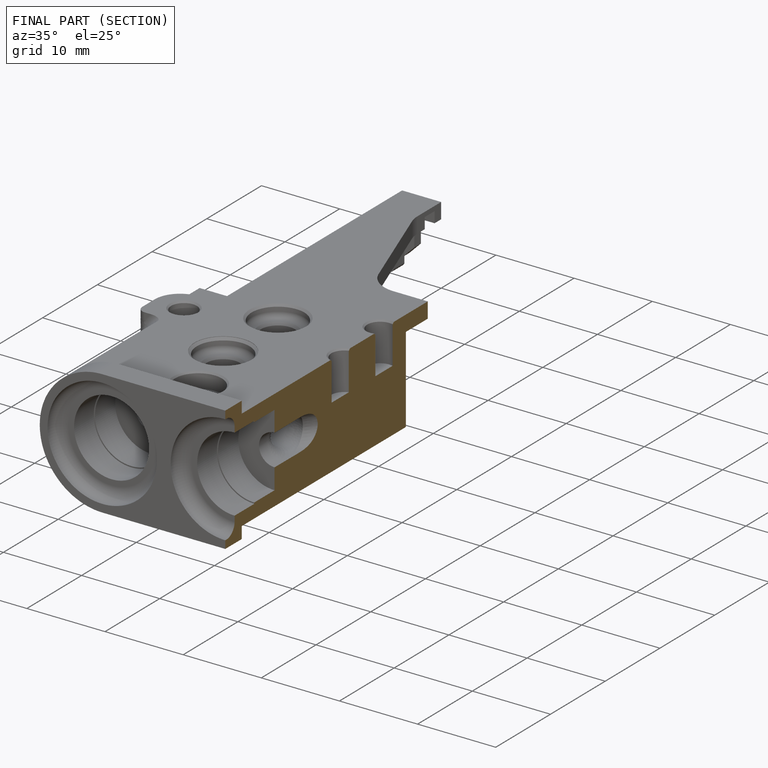
[diagram: finished part — half-section view (interior)]
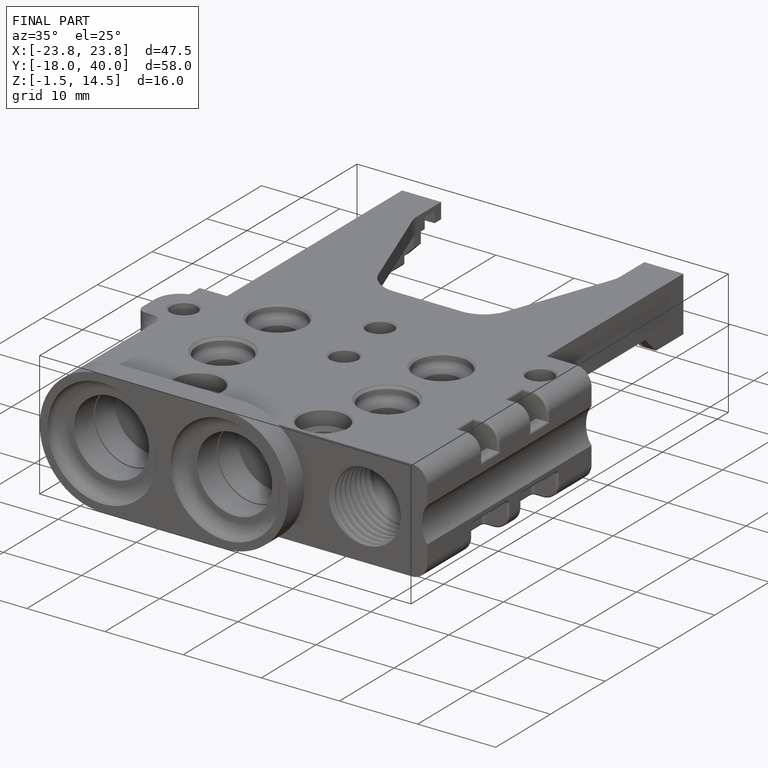
[diagram: finished part — iso view with bounding-box wireframe]
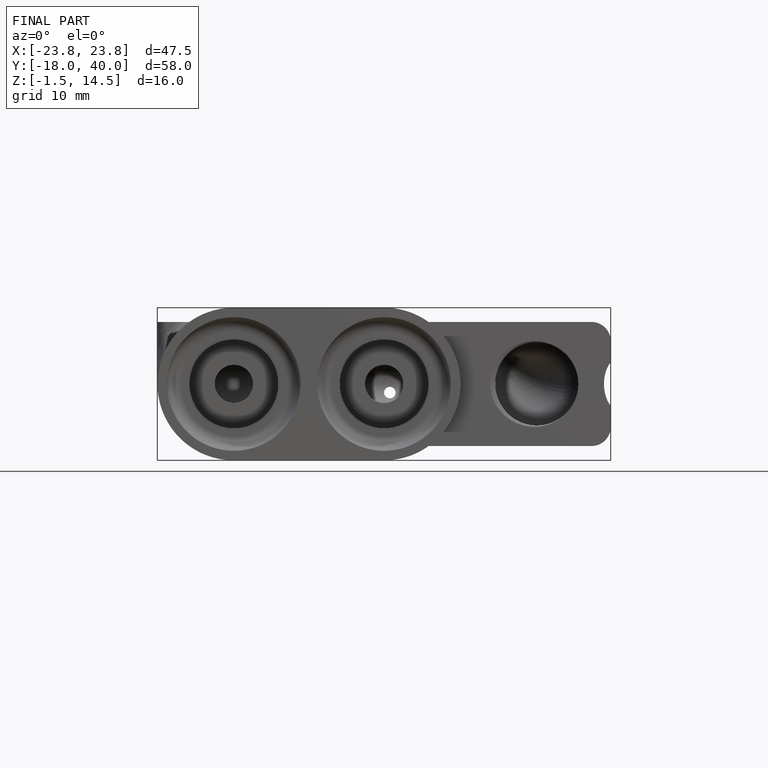
[diagram: finished part — front view with bounding-box wireframe]
